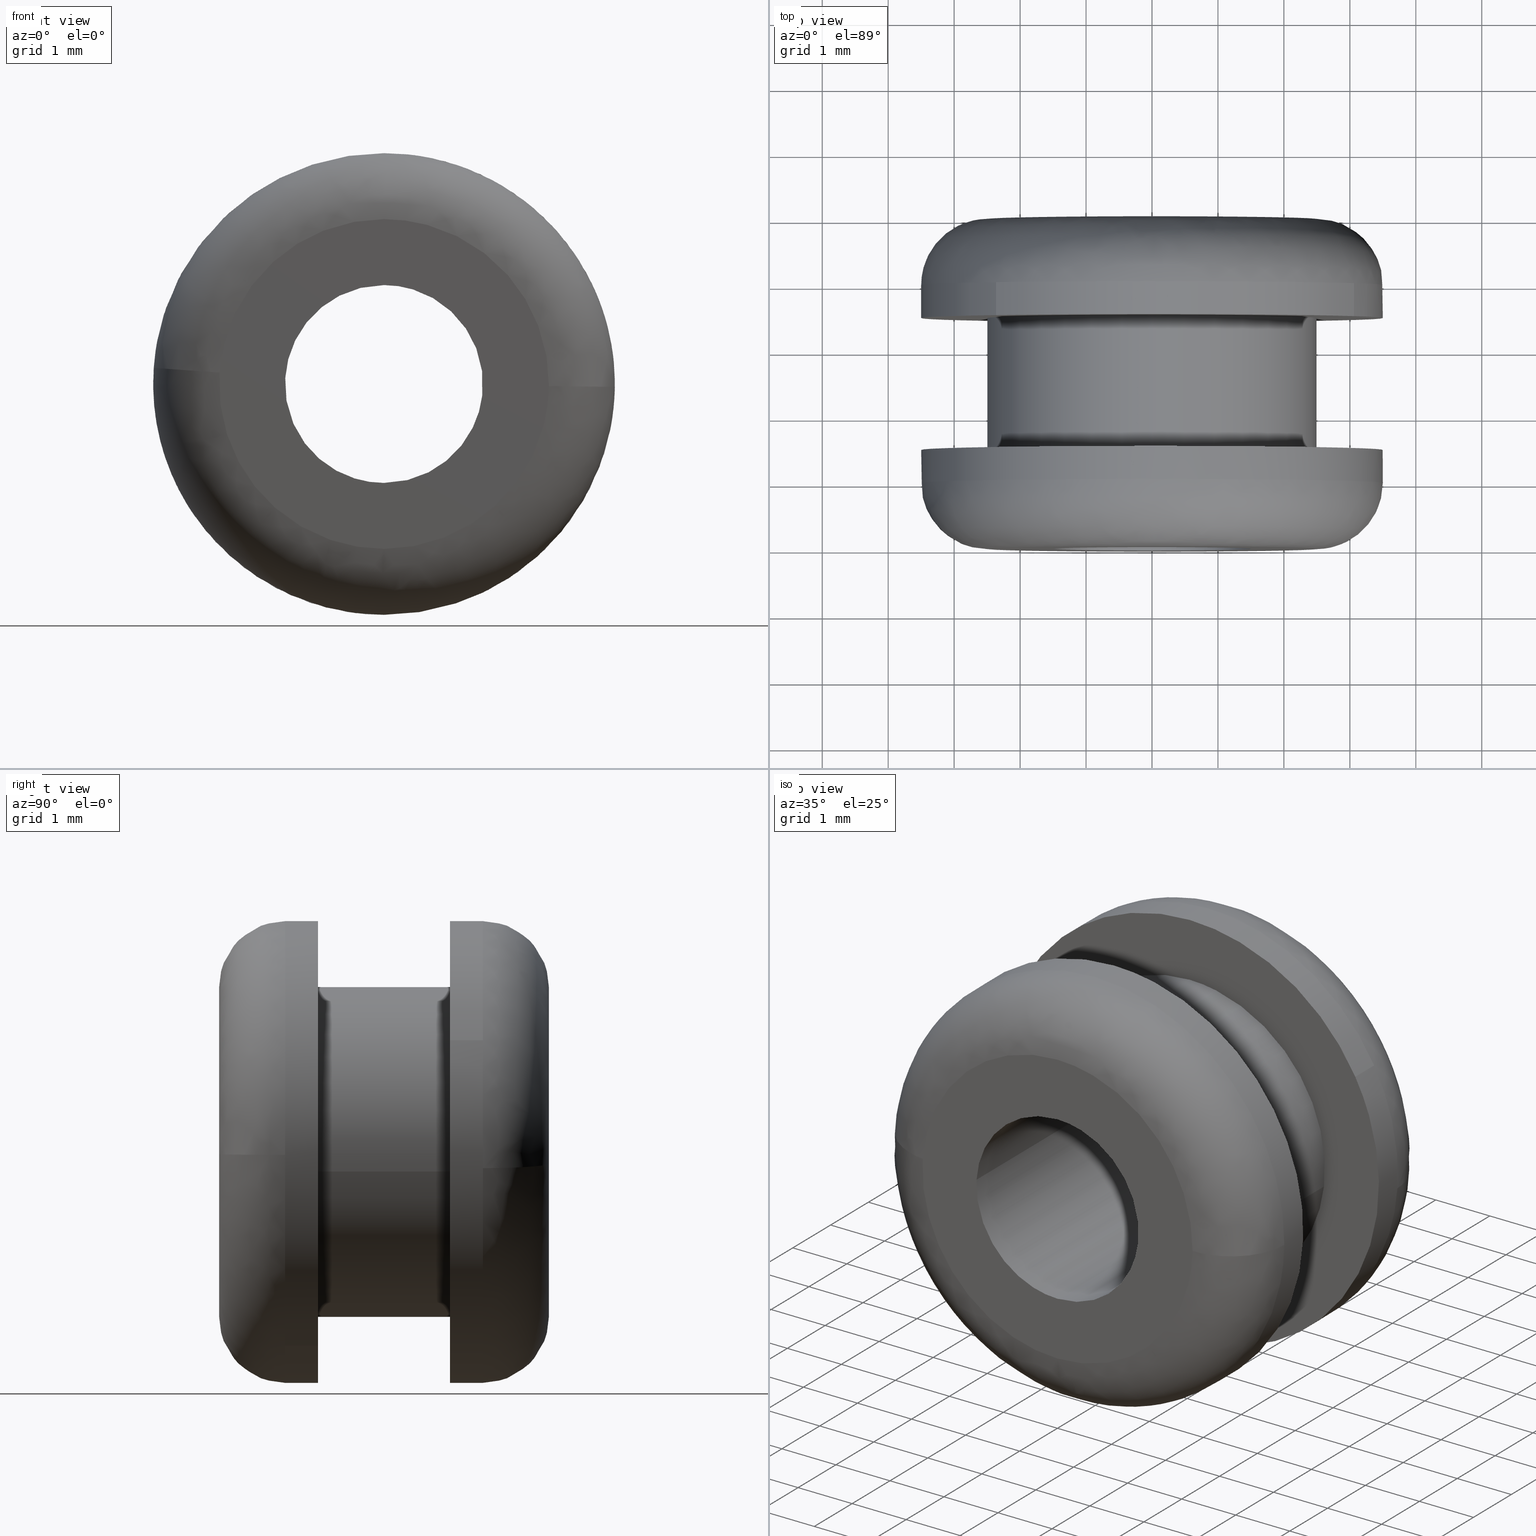
[diagram: canonical four-view strip — front | top / right | iso, engineering-drawing reading convention]
A machine part, canonical four-view strip (front | top / right | iso — engineering-drawing reading convention). The complete STEP part file that produces these views, byte-faithful:
ISO-10303-21;
HEADER;
/****************************************************************
 * Generated by software with PDE/Lib inside                    *
 * PDElib Version 4.4.1-0003, patched  Thursday August 19 11:58 *
 * International Technegroup Inc. (www.iti-oh.com)              *
 ****************************************************************/
FILE_DESCRIPTION((''),'2;1');
FILE_NAME('','2005-12-14T14:12:26',(''),(''),'','CADfix','');
FILE_SCHEMA(('AUTOMOTIVE_DESIGN'));
ENDSEC;
DATA;
#5=APPLICATION_CONTEXT('automotive design');
#6=APPLICATION_PROTOCOL_DEFINITION('Draft International Standard','automotive_design',1998,#5);
#7=PRODUCT_CONTEXT('None',#5,'mechanical');
#8=PRODUCT('grommet','','None',(#7));
#9=PRODUCT_RELATED_PRODUCT_CATEGORY('part','description',(#8));
#10=PRODUCT_DEFINITION_FORMATION('None','None',#8);
#11=PRODUCT_DEFINITION_CONTEXT('part definition',#5,'design');
#12=PRODUCT_DEFINITION('None','None',#10,#11);
#18=(NAMED_UNIT(*)PLANE_ANGLE_UNIT()SI_UNIT($,.RADIAN.));
#19=DIMENSIONAL_EXPONENTS(0.0,0.0,0.0,0.0,0.0,0.0,0.0);
#20=PLANE_ANGLE_MEASURE_WITH_UNIT(PLANE_ANGLE_MEASURE(0.017453292500000),#18);
#24=(CONVERSION_BASED_UNIT('DEGREE',#20)NAMED_UNIT(#19)PLANE_ANGLE_UNIT());
#28=(NAMED_UNIT(*)SI_UNIT($,.STERADIAN.)SOLID_ANGLE_UNIT());
#32=(LENGTH_UNIT()NAMED_UNIT(*)SI_UNIT(.MILLI.,.METRE.));
#34=UNCERTAINTY_MEASURE_WITH_UNIT(LENGTH_MEASURE(0.001000000000000),#32,'DISTANCE_ACCURACY_VALUE','');
#36=(GEOMETRIC_REPRESENTATION_CONTEXT(3)GLOBAL_UNCERTAINTY_ASSIGNED_CONTEXT((#34))GLOBAL_UNIT_ASSIGNED_CONTEXT((#24,#28,#32))REPRESENTATION_CONTEXT('None','None'));
#37=AXIS2_PLACEMENT_3D('',#38,#39,#40);
#38=CARTESIAN_POINT('',(0.0,0.0,0.0));
#39=DIRECTION('',(0.0,0.0,1.0));
#40=DIRECTION('',(1.0,0.0,0.0));
#41=ADVANCED_BREP_SHAPE_REPRESENTATION('',(#37,#1237),#36);
#42=PRODUCT_DEFINITION_SHAPE('','',#12);
#43=SHAPE_DEFINITION_REPRESENTATION(#42,#41);
#44=CARTESIAN_POINT('',(1.899551015351208,1.512500000000156,-2.939677863317372));
#45=CARTESIAN_POINT('',(2.069834292864542,1.512500000000156,-2.829644795839438));
#46=CARTESIAN_POINT('',(2.226273770972173,1.512500000000156,-2.700686041857019));
#47=CARTESIAN_POINT('',(4.926959812829193,1.512500000000157,-0.474412270884846));
#48=CARTESIAN_POINT('',(2.700686041857019,1.512500000000156,2.226273770972173));
#49=CARTESIAN_POINT('',(0.474412270884846,1.512500000000157,4.926959812829193));
#50=CARTESIAN_POINT('',(-2.226273770972173,1.512500000000156,2.700686041857018));
#51=CARTESIAN_POINT('',(-4.926959812829193,1.512500000000157,0.474412270884845));
#52=CARTESIAN_POINT('',(-2.700686041857019,1.512500000000156,-2.226273770972174));
#53=CARTESIAN_POINT('',(1.899551015351208,0.987187499993608,-2.939677863317372));
#54=CARTESIAN_POINT('',(2.069834292864542,0.987187499993608,-2.829644795839438));
#55=CARTESIAN_POINT('',(2.226273770972173,0.987187499993608,-2.700686041857019));
#56=CARTESIAN_POINT('',(4.926959812829193,0.987187499993608,-0.474412270884846));
#57=CARTESIAN_POINT('',(2.700686041857019,0.987187499993608,2.226273770972173));
#58=CARTESIAN_POINT('',(0.474412270884846,0.987187499993608,4.926959812829193));
#59=CARTESIAN_POINT('',(-2.226273770972173,0.987187499993608,2.700686041857018));
#60=CARTESIAN_POINT('',(-4.926959812829193,0.987187499993608,0.474412270884845));
#61=CARTESIAN_POINT('',(-2.700686041857019,0.987187499993608,-2.226273770972174));
#69=(BOUNDED_SURFACE()B_SPLINE_SURFACE(2,1,((#44,#53),(#45,#54),(#46,#55),(#47,#56),(#48,#57),(#49,#58),(#50,#59),(#51,#60),(#52,#61)),.UNSPECIFIED.,.F.,.F.,.U.)B_SPLINE_SURFACE_WITH_KNOTS((3,2,2,2,3),(2,2),(0.0,0.463919189857866,6.262909063081196,12.061898936304530,17.860888809527850),(0.0,1.0),.UNSPECIFIED.)GEOMETRIC_REPRESENTATION_ITEM()RATIONAL_B_SPLINE_SURFACE(((0.956886118190660,0.956886118190660),(0.976568542494924,0.976568542494924),(1.0,1.0),(0.707106781186548,0.707106781186548),(1.0,1.0),(0.707106781186548,0.707106781186548),(1.0,1.0),(0.707106781186548,0.707106781186548),(1.0,1.0)))REPRESENTATION_ITEM('')SURFACE());
#70=CARTESIAN_POINT('',(1.899550481738850,0.999999999998983,-2.939678208124894));
#71=VERTEX_POINT('',#70);
#72=CARTESIAN_POINT('',(3.499723654713332,0.999999999993827,-0.043981139593659));
#73=VERTEX_POINT('',#72);
#74=CARTESIAN_POINT('',(1.899550481738849,0.999999999998983,-2.939678208124894));
#75=CARTESIAN_POINT('',(3.476136023944697,0.999999999997179,-1.920926351079820));
#76=CARTESIAN_POINT('',(3.499723654713332,0.999999999993827,-0.043981139593659));
#84=(BOUNDED_CURVE()B_SPLINE_CURVE(2,(#74,#75,#76),.UNSPECIFIED.,.F.,.U.)B_SPLINE_CURVE_WITH_KNOTS((3,3),(0.092934687548090,0.247784295921535),.UNSPECIFIED.)CURVE()GEOMETRIC_REPRESENTATION_ITEM()RATIONAL_B_SPLINE_CURVE((0.863190132936236,0.816652436475568,0.994854295643567))REPRESENTATION_ITEM(''));
#85=EDGE_CURVE('',#71,#73,#84,.T.);
#86=ORIENTED_EDGE('',*,*,#85,.F.);
#87=CARTESIAN_POINT('',(1.899550485440329,1.500000000000000,-2.939678205733241));
#88=VERTEX_POINT('',#87);
#89=CARTESIAN_POINT('',(1.899550485440329,1.500000000000000,-2.939678205733241));
#90=CARTESIAN_POINT('',(1.899550481738850,0.999999999998983,-2.939678208124894));
#91=QUASI_UNIFORM_CURVE('',1,(#89,#90),.UNSPECIFIED.,.F.,.U.);
#92=EDGE_CURVE('',#88,#71,#91,.T.);
#93=ORIENTED_EDGE('',*,*,#92,.F.);
#94=CARTESIAN_POINT('',(0.0,1.500000000000000,3.500000000000000));
#95=VERTEX_POINT('',#94);
#96=CARTESIAN_POINT('',(1.899550485440329,1.500000000000000,-2.939678205733241));
#97=CARTESIAN_POINT('',(3.500000000000000,1.500000000000001,-1.905506014993988));
#98=CARTESIAN_POINT('',(3.500000000000000,1.500000000000000,-3.061516E-016));
#99=CARTESIAN_POINT('',(3.500000000000000,1.500000000000000,3.500000000000000));
#100=CARTESIAN_POINT('',(0.0,1.500000000000000,3.500000000000000));
#108=(BOUNDED_CURVE()B_SPLINE_CURVE(2,(#96,#97,#98,#99,#100),.UNSPECIFIED.,.F.,.U.)B_SPLINE_CURVE_WITH_KNOTS((3,2,3),(0.092934687932361,0.250000000000000,0.500000000000000),.UNSPECIFIED.)CURVE()GEOMETRIC_REPRESENTATION_ITEM()RATIONAL_B_SPLINE_CURVE((0.863190132705262,0.815986540738279,1.0,0.707106781186547,1.0))REPRESENTATION_ITEM(''));
#109=EDGE_CURVE('',#88,#95,#108,.T.);
#110=ORIENTED_EDGE('',*,*,#109,.T.);
#111=CARTESIAN_POINT('',(-2.700686313163404,1.500000000000000,-2.226273441851130));
#112=VERTEX_POINT('',#111);
#113=CARTESIAN_POINT('',(0.0,1.500000000000000,3.500000000000000));
#114=CARTESIAN_POINT('',(-3.500000000000000,1.500000000000000,3.500000000000000));
#115=CARTESIAN_POINT('',(-3.500000000000000,1.500000000000000,-3.061516E-016));
#116=CARTESIAN_POINT('',(-3.500000000000000,1.500000000000000,-1.256627921506466));
#117=CARTESIAN_POINT('',(-2.700686313163404,1.500000000000000,-2.226273441851130));
#125=(BOUNDED_CURVE()B_SPLINE_CURVE(2,(#113,#114,#115,#116,#117),.UNSPECIFIED.,.F.,.U.)B_SPLINE_CURVE_WITH_KNOTS((3,2,3),(0.500000000000000,0.750000000000000,0.860504588998465),.UNSPECIFIED.)CURVE()GEOMETRIC_REPRESENTATION_ITEM()RATIONAL_B_SPLINE_CURVE((1.0,0.707106781186547,1.0,0.870535820938328,0.855522729054526))REPRESENTATION_ITEM(''));
#126=EDGE_CURVE('',#95,#112,#125,.T.);
#127=ORIENTED_EDGE('',*,*,#126,.T.);
#128=CARTESIAN_POINT('',(-2.700686320416099,0.999999999999991,-2.226273433052903));
#129=VERTEX_POINT('',#128);
#130=CARTESIAN_POINT('',(-2.700686313163404,1.500000000000000,-2.226273441851130));
#131=CARTESIAN_POINT('',(-2.700686320416099,0.999999999999991,-2.226273433052903));
#132=QUASI_UNIFORM_CURVE('',1,(#130,#131),.UNSPECIFIED.,.F.,.U.);
#133=EDGE_CURVE('',#112,#129,#132,.T.);
#134=ORIENTED_EDGE('',*,*,#133,.T.);
#135=CARTESIAN_POINT('',(-3.491479858441498,0.999999999993767,0.244066380514253));
#136=VERTEX_POINT('',#135);
#137=CARTESIAN_POINT('',(-3.491479858441499,0.999999999993767,0.244066380514253));
#138=CARTESIAN_POINT('',(-3.500000000000000,1.0,0.122181905561697));
#139=CARTESIAN_POINT('',(-3.500000000000000,1.0,-3.061516E-016));
#140=CARTESIAN_POINT('',(-3.500000000000000,1.0,-1.256627908634423));
#141=CARTESIAN_POINT('',(-2.700686320416099,0.999999999999991,-2.226273433052903));
#149=(BOUNDED_CURVE()B_SPLINE_CURVE(2,(#137,#138,#139,#140,#141),.UNSPECIFIED.,.F.,.U.)B_SPLINE_CURVE_WITH_KNOTS((3,2,3),(0.737833686535114,0.750000000000000,0.860504588013076),.UNSPECIFIED.)CURVE()GEOMETRIC_REPRESENTATION_ITEM()RATIONAL_B_SPLINE_CURVE((0.972879876387024,0.985746277152705,1.0,0.870535822092783,0.855522729322275))REPRESENTATION_ITEM(''));
#150=EDGE_CURVE('',#136,#129,#149,.T.);
#151=ORIENTED_EDGE('',*,*,#150,.F.);
#152=CARTESIAN_POINT('',(0.0,1.0,3.500000000000000));
#153=VERTEX_POINT('',#152);
#154=CARTESIAN_POINT('',(0.0,1.0,3.500000000000000));
#155=CARTESIAN_POINT('',(-3.263878965432774,1.0,3.499999999999999));
#156=CARTESIAN_POINT('',(-3.491479858441499,0.999999999993767,0.244066380514253));
#164=(BOUNDED_CURVE()B_SPLINE_CURVE(2,(#154,#155,#156),.UNSPECIFIED.,.F.,.U.)B_SPLINE_CURVE_WITH_KNOTS((3,3),(0.500000000000000,0.737833686535114),.UNSPECIFIED.)CURVE()GEOMETRIC_REPRESENTATION_ITEM()RATIONAL_B_SPLINE_CURVE((1.0,0.721360504033843,0.972879876387023))REPRESENTATION_ITEM(''));
#165=EDGE_CURVE('',#153,#136,#164,.T.);
#166=ORIENTED_EDGE('',*,*,#165,.F.);
#167=CARTESIAN_POINT('',(3.499723654713332,0.999999999993827,-0.043981139593659));
#168=CARTESIAN_POINT('',(3.500000000000000,1.0,-0.021991437973539));
#169=CARTESIAN_POINT('',(3.500000000000000,1.0,-3.061516E-016));
#170=CARTESIAN_POINT('',(3.500000000000000,1.0,3.500000000000000));
#171=CARTESIAN_POINT('',(0.0,1.0,3.500000000000000));
#179=(BOUNDED_CURVE()B_SPLINE_CURVE(2,(#167,#168,#169,#170,#171),.UNSPECIFIED.,.F.,.U.)B_SPLINE_CURVE_WITH_KNOTS((3,2,3),(0.247784295921535,0.250000000000000,0.500000000000000),.UNSPECIFIED.)CURVE()GEOMETRIC_REPRESENTATION_ITEM()RATIONAL_B_SPLINE_CURVE((0.994854295643567,0.997404141202081,1.0,0.707106781186547,1.0))REPRESENTATION_ITEM(''));
#180=EDGE_CURVE('',#73,#153,#179,.T.);
#181=ORIENTED_EDGE('',*,*,#180,.F.);
#182=EDGE_LOOP('',(#86,#93,#110,#127,#134,#151,#166,#181));
#183=FACE_OUTER_BOUND('',#182,.T.);
#184=ADVANCED_FACE('',(#183),#69,.T.);
#185=CARTESIAN_POINT('',(-2.700686041857019,1.512500000000156,-2.226273770972174));
#186=CARTESIAN_POINT('',(-0.718207725037595,1.512500000000156,-4.631212277785017));
#187=CARTESIAN_POINT('',(1.899551015351208,1.512500000000156,-2.939677863317372));
#188=CARTESIAN_POINT('',(-2.700686041857019,0.987187499993608,-2.226273770972174));
#189=CARTESIAN_POINT('',(-0.718207725037595,0.987187499993608,-4.631212277785017));
#190=CARTESIAN_POINT('',(1.899551015351208,0.987187499993608,-2.939677863317372));
#198=(BOUNDED_SURFACE()B_SPLINE_SURFACE(2,1,((#185,#188),(#186,#189),(#187,#190)),.UNSPECIFIED.,.F.,.F.,.U.)B_SPLINE_SURFACE_WITH_KNOTS((3,3),(2,2),(0.0,5.329218847202446),(0.0,1.0),.UNSPECIFIED.)GEOMETRIC_REPRESENTATION_ITEM()RATIONAL_B_SPLINE_SURFACE(((1.0,1.0),(0.730538238691624,0.730538238691624),(0.956886118190660,0.956886118190660)))REPRESENTATION_ITEM('')SURFACE());
#199=CARTESIAN_POINT('',(0.0,1.0,-3.500000000000000));
#200=VERTEX_POINT('',#199);
#201=CARTESIAN_POINT('',(0.0,1.0,-3.500000000000000));
#202=CARTESIAN_POINT('',(1.032415634382080,1.0,-3.500000000000001));
#203=CARTESIAN_POINT('',(1.899550481738850,0.999999999998983,-2.939678208124894));
#211=(BOUNDED_CURVE()B_SPLINE_CURVE(2,(#201,#202,#203),.UNSPECIFIED.,.F.,.U.)B_SPLINE_CURVE_WITH_KNOTS((3,3),(0.0,0.092934687548090),.UNSPECIFIED.)CURVE()GEOMETRIC_REPRESENTATION_ITEM()RATIONAL_B_SPLINE_CURVE((1.0,0.891120240898470,0.863190132936235))REPRESENTATION_ITEM(''));
#212=EDGE_CURVE('',#200,#71,#211,.T.);
#213=ORIENTED_EDGE('',*,*,#212,.F.);
#214=CARTESIAN_POINT('',(-2.700686320416099,0.999999999999991,-2.226273433052902));
#215=CARTESIAN_POINT('',(-1.650707701043124,1.0,-3.500000000000001));
#216=CARTESIAN_POINT('',(0.0,1.0,-3.500000000000000));
#224=(BOUNDED_CURVE()B_SPLINE_CURVE(2,(#214,#215,#216),.UNSPECIFIED.,.F.,.U.)B_SPLINE_CURVE_WITH_KNOTS((3,3),(0.860504588013076,1.0),.UNSPECIFIED.)CURVE()GEOMETRIC_REPRESENTATION_ITEM()RATIONAL_B_SPLINE_CURVE((0.855522729322274,0.836570959093765,1.0))REPRESENTATION_ITEM(''));
#225=EDGE_CURVE('',#129,#200,#224,.T.);
#226=ORIENTED_EDGE('',*,*,#225,.F.);
#227=ORIENTED_EDGE('',*,*,#133,.F.);
#228=CARTESIAN_POINT('',(0.0,1.500000000000000,-3.500000000000000));
#229=VERTEX_POINT('',#228);
#230=CARTESIAN_POINT('',(-2.700686313163404,1.500000000000000,-2.226273441851130));
#231=CARTESIAN_POINT('',(-1.650707687104655,1.500000000000000,-3.500000000000000));
#232=CARTESIAN_POINT('',(0.0,1.500000000000000,-3.500000000000000));
#240=(BOUNDED_CURVE()B_SPLINE_CURVE(2,(#230,#231,#232),.UNSPECIFIED.,.F.,.U.)B_SPLINE_CURVE_WITH_KNOTS((3,3),(0.860504588998465,1.0),.UNSPECIFIED.)CURVE()GEOMETRIC_REPRESENTATION_ITEM()RATIONAL_B_SPLINE_CURVE((0.855522729054526,0.836570960248220,1.0))REPRESENTATION_ITEM(''));
#241=EDGE_CURVE('',#112,#229,#240,.T.);
#242=ORIENTED_EDGE('',*,*,#241,.T.);
#243=CARTESIAN_POINT('',(0.0,1.500000000000000,-3.500000000000000));
#244=CARTESIAN_POINT('',(1.032415639172544,1.500000000000000,-3.500000000000001));
#245=CARTESIAN_POINT('',(1.899550485440329,1.500000000000000,-2.939678205733241));
#253=(BOUNDED_CURVE()B_SPLINE_CURVE(2,(#243,#244,#245),.UNSPECIFIED.,.F.,.U.)B_SPLINE_CURVE_WITH_KNOTS((3,3),(0.0,0.092934687932361),.UNSPECIFIED.)CURVE()GEOMETRIC_REPRESENTATION_ITEM()RATIONAL_B_SPLINE_CURVE((1.0,0.891120240448269,0.863190132705262))REPRESENTATION_ITEM(''));
#254=EDGE_CURVE('',#229,#88,#253,.T.);
#255=ORIENTED_EDGE('',*,*,#254,.T.);
#256=ORIENTED_EDGE('',*,*,#92,.T.);
#257=EDGE_LOOP('',(#213,#226,#227,#242,#255,#256));
#258=FACE_OUTER_BOUND('',#257,.T.);
#259=ADVANCED_FACE('',(#258),#198,.T.);
#260=CARTESIAN_POINT('',(2.482523815909166,3.550000000000001,-0.295085586641897));
#261=CARTESIAN_POINT('',(2.490969038621514,3.550000000000001,-0.224036821594944));
#262=CARTESIAN_POINT('',(2.495336996054667,3.550000000000001,-0.152621348837143));
#263=CARTESIAN_POINT('',(2.647958344891809,3.550000000000002,2.342715647217524));
#264=CARTESIAN_POINT('',(0.152621348837143,3.550000000000001,2.495336996054666));
#265=CARTESIAN_POINT('',(-2.342715647217524,3.550000000000002,2.647958344891809));
#266=CARTESIAN_POINT('',(-2.495336996054667,3.550000000000001,0.152621348837142));
#267=CARTESIAN_POINT('',(2.482523815909166,1.448750000000000,-0.295085586641897));
#268=CARTESIAN_POINT('',(2.490969038621514,1.448750000000000,-0.224036821594944));
#269=CARTESIAN_POINT('',(2.495336996054667,1.448750000000000,-0.152621348837143));
#270=CARTESIAN_POINT('',(2.647958344891809,1.448750000000000,2.342715647217524));
#271=CARTESIAN_POINT('',(0.152621348837143,1.448750000000000,2.495336996054666));
#272=CARTESIAN_POINT('',(-2.342715647217524,1.448750000000000,2.647958344891809));
#273=CARTESIAN_POINT('',(-2.495336996054667,1.448750000000000,0.152621348837142));
#281=(BOUNDED_SURFACE()B_SPLINE_SURFACE(2,1,((#260,#267),(#261,#268),(#262,#269),(#263,#270),(#264,#271),(#265,#272),(#266,#273)),.UNSPECIFIED.,.F.,.F.,.U.)B_SPLINE_SURFACE_WITH_KNOTS((3,2,2,3),(2,2),(0.0,0.165685424949238,4.307821048680188,8.449956672411137),(0.0,2.101250000000001),.UNSPECIFIED.)GEOMETRIC_REPRESENTATION_ITEM()RATIONAL_B_SPLINE_SURFACE(((0.977505800795127,0.977505800795127),(0.988284271247462,0.988284271247462),(1.0,1.0),(0.707106781186548,0.707106781186548),(1.0,1.0),(0.707106781186548,0.707106781186548),(1.0,1.0)))REPRESENTATION_ITEM('')SURFACE());
#282=CARTESIAN_POINT('',(2.482524095308369,1.499999999999989,-0.295083236066980));
#283=VERTEX_POINT('',#282);
#284=CARTESIAN_POINT('',(0.0,1.500000000000000,2.500000000000000));
#285=VERTEX_POINT('',#284);
#286=CARTESIAN_POINT('',(2.482524095308369,1.499999999999988,-0.295083236066980));
#287=CARTESIAN_POINT('',(2.500000000000000,1.500000000000000,-0.148059111417495));
#288=CARTESIAN_POINT('',(2.500000000000000,1.500000000000000,-3.061516E-016));
#289=CARTESIAN_POINT('',(2.500000000000000,1.500000000000000,2.500000000000000));
#290=CARTESIAN_POINT('',(0.0,1.500000000000000,2.500000000000000));
#298=(BOUNDED_CURVE()B_SPLINE_CURVE(2,(#286,#287,#288,#289,#290),.UNSPECIFIED.,.F.,.U.)B_SPLINE_CURVE_WITH_KNOTS((3,2,3),(0.229562633536192,0.250000000000000,0.500000000000000),.UNSPECIFIED.)CURVE()GEOMETRIC_REPRESENTATION_ITEM()RATIONAL_B_SPLINE_CURVE((0.956027067834948,0.976056135809381,1.0,0.707106781186548,1.0))REPRESENTATION_ITEM(''));
#299=EDGE_CURVE('',#283,#285,#298,.T.);
#300=ORIENTED_EDGE('',*,*,#299,.F.);
#301=CARTESIAN_POINT('',(2.482524091859304,3.500000000000000,-0.295083265084057));
#302=VERTEX_POINT('',#301);
#303=CARTESIAN_POINT('',(2.482524091859304,3.500000000000000,-0.295083265084057));
#304=CARTESIAN_POINT('',(2.482524095308369,1.499999999999989,-0.295083236066980));
#305=QUASI_UNIFORM_CURVE('',1,(#303,#304),.UNSPECIFIED.,.F.,.U.);
#306=EDGE_CURVE('',#302,#283,#305,.T.);
#307=ORIENTED_EDGE('',*,*,#306,.F.);
#308=CARTESIAN_POINT('',(0.0,3.500000000000000,2.500000000000000));
#309=VERTEX_POINT('',#308);
#310=CARTESIAN_POINT('',(2.482524091859305,3.500000000000000,-0.295083265084057));
#311=CARTESIAN_POINT('',(2.500000000000000,3.500000000000000,-0.148059126079412));
#312=CARTESIAN_POINT('',(2.500000000000000,3.500000000000000,-3.061516E-016));
#313=CARTESIAN_POINT('',(2.500000000000000,3.499999999999999,2.500000000000000));
#314=CARTESIAN_POINT('',(0.0,3.500000000000000,2.500000000000000));
#322=(BOUNDED_CURVE()B_SPLINE_CURVE(2,(#310,#311,#312,#313,#314),.UNSPECIFIED.,.F.,.U.)B_SPLINE_CURVE_WITH_KNOTS((3,2,3),(0.229562631560791,0.250000000000000,0.500000000000000),.UNSPECIFIED.)CURVE()GEOMETRIC_REPRESENTATION_ITEM()RATIONAL_B_SPLINE_CURVE((0.956027063963075,0.976056133495054,1.0,0.707106781186548,1.0))REPRESENTATION_ITEM(''));
#323=EDGE_CURVE('',#302,#309,#322,.T.);
#324=ORIENTED_EDGE('',*,*,#323,.T.);
#325=CARTESIAN_POINT('',(-2.495337142089722,3.500000000000000,0.152618961147619));
#326=VERTEX_POINT('',#325);
#327=CARTESIAN_POINT('',(0.0,3.500000000000000,2.500000000000000));
#328=CARTESIAN_POINT('',(-2.351767421781551,3.500000000000000,2.500000000000000));
#329=CARTESIAN_POINT('',(-2.495337142089722,3.500000000000000,0.152618961147619));
#337=(BOUNDED_CURVE()B_SPLINE_CURVE(2,(#327,#328,#329),.UNSPECIFIED.,.F.,.U.)B_SPLINE_CURVE_WITH_KNOTS((3,3),(0.500000000000000,0.739333127345204),.UNSPECIFIED.)CURVE()GEOMETRIC_REPRESENTATION_ITEM()RATIONAL_B_SPLINE_CURVE((1.0,0.719603799852693,0.976072395521120))REPRESENTATION_ITEM(''));
#338=EDGE_CURVE('',#309,#326,#337,.T.);
#339=ORIENTED_EDGE('',*,*,#338,.T.);
#340=CARTESIAN_POINT('',(-2.495337143915105,1.499999999999989,0.152618931301920));
#341=VERTEX_POINT('',#340);
#342=CARTESIAN_POINT('',(-2.495337142089722,3.500000000000000,0.152618961147619));
#343=CARTESIAN_POINT('',(-2.495337143915105,1.499999999999989,0.152618931301920));
#344=QUASI_UNIFORM_CURVE('',1,(#342,#343),.UNSPECIFIED.,.F.,.U.);
#345=EDGE_CURVE('',#326,#341,#344,.T.);
#346=ORIENTED_EDGE('',*,*,#345,.T.);
#347=CARTESIAN_POINT('',(0.0,1.500000000000000,2.500000000000000));
#348=CARTESIAN_POINT('',(-2.351767449962633,1.500000000000000,2.500000000000000));
#349=CARTESIAN_POINT('',(-2.495337143915105,1.499999999999989,0.152618931301920));
#357=(BOUNDED_CURVE()B_SPLINE_CURVE(2,(#347,#348,#349),.UNSPECIFIED.,.F.,.U.)B_SPLINE_CURVE_WITH_KNOTS((3,3),(0.500000000000000,0.739333129408966),.UNSPECIFIED.)CURVE()GEOMETRIC_REPRESENTATION_ITEM()RATIONAL_B_SPLINE_CURVE((1.0,0.719603797434846,0.976072399944161))REPRESENTATION_ITEM(''));
#358=EDGE_CURVE('',#285,#341,#357,.T.);
#359=ORIENTED_EDGE('',*,*,#358,.F.);
#360=EDGE_LOOP('',(#300,#307,#324,#339,#346,#359));
#361=FACE_OUTER_BOUND('',#360,.T.);
#362=ADVANCED_FACE('',(#361),#281,.T.);
#363=CARTESIAN_POINT('',(-2.495336996054667,3.550000000000001,0.152621348837142));
#364=CARTESIAN_POINT('',(-2.647958344891809,3.550000000000002,-2.342715647217524));
#365=CARTESIAN_POINT('',(-0.152621348837143,3.550000000000001,-2.495336996054667));
#366=CARTESIAN_POINT('',(2.203858727098751,3.550000000000001,-2.639465491831319));
#367=CARTESIAN_POINT('',(2.482523815909166,3.550000000000001,-0.295085586641897));
#368=CARTESIAN_POINT('',(-2.495336996054667,1.448750000000000,0.152621348837142));
#369=CARTESIAN_POINT('',(-2.647958344891809,1.448750000000000,-2.342715647217524));
#370=CARTESIAN_POINT('',(-0.152621348837143,1.448750000000000,-2.495336996054667));
#371=CARTESIAN_POINT('',(2.203858727098751,1.448749999999999,-2.639465491831319));
#372=CARTESIAN_POINT('',(2.482523815909166,1.448750000000000,-0.295085586641897));
#380=(BOUNDED_SURFACE()B_SPLINE_SURFACE(2,1,((#363,#368),(#364,#369),(#365,#370),(#366,#371),(#367,#372)),.UNSPECIFIED.,.F.,.F.,.U.)B_SPLINE_SURFACE_WITH_KNOTS((3,2,3),(2,2),(0.0,4.142135623730949,8.118585822512660),(0.0,2.101250000000001),.UNSPECIFIED.)GEOMETRIC_REPRESENTATION_ITEM()RATIONAL_B_SPLINE_SURFACE(((1.0,1.0),(0.707106781186548,0.707106781186548),(1.0,1.0),(0.718822509939086,0.718822509939086),(0.977505800795127,0.977505800795127)))REPRESENTATION_ITEM('')SURFACE());
#381=CARTESIAN_POINT('',(0.0,1.500000000000000,-2.500000000000000));
#382=VERTEX_POINT('',#381);
#383=CARTESIAN_POINT('',(0.0,1.500000000000000,-2.500000000000000));
#384=CARTESIAN_POINT('',(2.220438432097085,1.500000000000000,-2.500000000000000));
#385=CARTESIAN_POINT('',(2.482524095308369,1.499999999999988,-0.295083236066980));
#393=(BOUNDED_CURVE()B_SPLINE_CURVE(2,(#383,#384,#385),.UNSPECIFIED.,.F.,.U.)B_SPLINE_CURVE_WITH_KNOTS((3,3),(0.0,0.229562633536192),.UNSPECIFIED.)CURVE()GEOMETRIC_REPRESENTATION_ITEM()RATIONAL_B_SPLINE_CURVE((1.0,0.731050645377167,0.956027067834948))REPRESENTATION_ITEM(''));
#394=EDGE_CURVE('',#382,#283,#393,.T.);
#395=ORIENTED_EDGE('',*,*,#394,.F.);
#396=CARTESIAN_POINT('',(-2.495337143915105,1.499999999999989,0.152618931301920));
#397=CARTESIAN_POINT('',(-2.500000000000000,1.500000000000000,0.076380696089684));
#398=CARTESIAN_POINT('',(-2.500000000000000,1.500000000000000,-3.061516E-016));
#399=CARTESIAN_POINT('',(-2.500000000000000,1.500000000000000,-2.500000000000000));
#400=CARTESIAN_POINT('',(0.0,1.500000000000000,-2.500000000000000));
#408=(BOUNDED_CURVE()B_SPLINE_CURVE(2,(#396,#397,#398,#399,#400),.UNSPECIFIED.,.F.,.U.)B_SPLINE_CURVE_WITH_KNOTS((3,2,3),(0.739333129408966,0.750000000000000,1.0),.UNSPECIFIED.)CURVE()GEOMETRIC_REPRESENTATION_ITEM()RATIONAL_B_SPLINE_CURVE((0.976072399944161,0.987502983751702,1.0,0.707106781186548,1.0))REPRESENTATION_ITEM(''));
#409=EDGE_CURVE('',#341,#382,#408,.T.);
#410=ORIENTED_EDGE('',*,*,#409,.F.);
#411=ORIENTED_EDGE('',*,*,#345,.F.);
#412=CARTESIAN_POINT('',(0.0,3.500000000000000,-2.500000000000000));
#413=VERTEX_POINT('',#412);
#414=CARTESIAN_POINT('',(-2.495337142089722,3.500000000000000,0.152618961147619));
#415=CARTESIAN_POINT('',(-2.500000000000000,3.499999999999999,0.076380711054374));
#416=CARTESIAN_POINT('',(-2.500000000000000,3.500000000000000,-3.061516E-016));
#417=CARTESIAN_POINT('',(-2.500000000000000,3.499999999999999,-2.500000000000000));
#418=CARTESIAN_POINT('',(0.0,3.500000000000000,-2.500000000000000));
#426=(BOUNDED_CURVE()B_SPLINE_CURVE(2,(#414,#415,#416,#417,#418),.UNSPECIFIED.,.F.,.U.)B_SPLINE_CURVE_WITH_KNOTS((3,2,3),(0.739333127345204,0.750000000000000,1.0),.UNSPECIFIED.)CURVE()GEOMETRIC_REPRESENTATION_ITEM()RATIONAL_B_SPLINE_CURVE((0.976072395521120,0.987502981333855,1.0,0.707106781186548,1.0))REPRESENTATION_ITEM(''));
#427=EDGE_CURVE('',#326,#413,#426,.T.);
#428=ORIENTED_EDGE('',*,*,#427,.T.);
#429=CARTESIAN_POINT('',(0.0,3.500000000000000,-2.500000000000000));
#430=CARTESIAN_POINT('',(2.220438405960706,3.500000000000000,-2.500000000000001));
#431=CARTESIAN_POINT('',(2.482524091859305,3.500000000000000,-0.295083265084057));
#439=(BOUNDED_CURVE()B_SPLINE_CURVE(2,(#429,#430,#431),.UNSPECIFIED.,.F.,.U.)B_SPLINE_CURVE_WITH_KNOTS((3,3),(0.0,0.229562631560791),.UNSPECIFIED.)CURVE()GEOMETRIC_REPRESENTATION_ITEM()RATIONAL_B_SPLINE_CURVE((1.0,0.731050647691493,0.956027063963075))REPRESENTATION_ITEM(''));
#440=EDGE_CURVE('',#413,#302,#439,.T.);
#441=ORIENTED_EDGE('',*,*,#440,.T.);
#442=ORIENTED_EDGE('',*,*,#306,.T.);
#443=EDGE_LOOP('',(#395,#410,#411,#428,#441,#442));
#444=FACE_OUTER_BOUND('',#443,.T.);
#445=ADVANCED_FACE('',(#444),#380,.T.);
#446=CARTESIAN_POINT('',(3.062312496050955,4.012499999999999,1.694769062890327));
#447=CARTESIAN_POINT('',(2.861143918596612,4.012500000000000,2.058264634080782));
#448=CARTESIAN_POINT('',(2.580470678835433,4.012500000000000,2.364565726654810));
#449=CARTESIAN_POINT('',(0.215904952180622,4.012500000000000,4.945036405490243));
#450=CARTESIAN_POINT('',(-2.364565726654810,4.012500000000000,2.580470678835432));
#451=CARTESIAN_POINT('',(3.062312496050955,3.487187500000000,1.694769062890327));
#452=CARTESIAN_POINT('',(2.861143918596612,3.487187500000000,2.058264634080782));
#453=CARTESIAN_POINT('',(2.580470678835433,3.487187500000000,2.364565726654810));
#454=CARTESIAN_POINT('',(0.215904952180622,3.487187500000001,4.945036405490243));
#455=CARTESIAN_POINT('',(-2.364565726654810,3.487187500000000,2.580470678835432));
#463=(BOUNDED_SURFACE()B_SPLINE_SURFACE(2,1,((#446,#451),(#447,#452),(#448,#453),(#449,#454),(#450,#455)),.UNSPECIFIED.,.F.,.F.,.U.)B_SPLINE_SURFACE_WITH_KNOTS((3,2,3),(2,2),(0.0,0.927838379715734,6.726828252939063),(0.0,1.0),.UNSPECIFIED.)GEOMETRIC_REPRESENTATION_ITEM()RATIONAL_B_SPLINE_SURFACE(((0.921270302782944,0.921270302782944),(0.953137084989848,0.953137084989848),(1.0,1.0),(0.707106781186548,0.707106781186548),(1.0,1.0)))REPRESENTATION_ITEM('')SURFACE());
#464=CARTESIAN_POINT('',(3.062312809461116,3.999999043841613,1.694768496581680));
#465=VERTEX_POINT('',#464);
#466=CARTESIAN_POINT('',(0.0,4.0,3.500000000000000));
#467=VERTEX_POINT('',#466);
#468=CARTESIAN_POINT('',(3.062312809461116,3.999999043841613,1.694768496581680));
#469=CARTESIAN_POINT('',(2.063248267086356,3.999999605294685,3.500000000000041));
#470=CARTESIAN_POINT('',(0.0,4.0,3.500000000000000));
#478=(BOUNDED_CURVE()B_SPLINE_CURVE(2,(#468,#469,#470),.UNSPECIFIED.,.F.,.U.)B_SPLINE_CURVE_WITH_KNOTS((3,3),(0.332484232055863,0.500000000000000),.UNSPECIFIED.)CURVE()GEOMETRIC_REPRESENTATION_ITEM()RATIONAL_B_SPLINE_CURVE((0.870495182812020,0.803743070099337,1.0))REPRESENTATION_ITEM(''));
#479=EDGE_CURVE('',#465,#467,#478,.T.);
#480=ORIENTED_EDGE('',*,*,#479,.T.);
#481=CARTESIAN_POINT('',(-2.364565584249820,3.999999325511647,2.580470809324931));
#482=VERTEX_POINT('',#481);
#483=CARTESIAN_POINT('',(0.0,4.0,3.500000000000000));
#484=CARTESIAN_POINT('',(-1.361075339126738,3.999999719481177,3.499999999999992));
#485=CARTESIAN_POINT('',(-2.364565584249820,3.999999325511646,2.580470809324931));
#493=(BOUNDED_CURVE()B_SPLINE_CURVE(2,(#483,#484,#485),.UNSPECIFIED.,.F.,.U.)B_SPLINE_CURVE_WITH_KNOTS((3,3),(0.500000000000000,0.618415192422474),.UNSPECIFIED.)CURVE()GEOMETRIC_REPRESENTATION_ITEM()RATIONAL_B_SPLINE_CURVE((1.0,0.861267972539869,0.853959782894549))REPRESENTATION_ITEM(''));
#494=EDGE_CURVE('',#467,#482,#493,.T.);
#495=ORIENTED_EDGE('',*,*,#494,.T.);
#496=CARTESIAN_POINT('',(-2.364565588025771,3.500000000000000,2.580470805865530));
#497=VERTEX_POINT('',#496);
#498=CARTESIAN_POINT('',(-2.364565584249820,3.999999325511647,2.580470809324931));
#499=CARTESIAN_POINT('',(-2.364565588025771,3.500000000000000,2.580470805865530));
#500=QUASI_UNIFORM_CURVE('',1,(#498,#499),.UNSPECIFIED.,.F.,.U.);
#501=EDGE_CURVE('',#482,#497,#500,.T.);
#502=ORIENTED_EDGE('',*,*,#501,.T.);
#503=CARTESIAN_POINT('',(0.0,3.500000000000000,3.500000000000000));
#504=VERTEX_POINT('',#503);
#505=CARTESIAN_POINT('',(0.0,3.500000000000000,3.500000000000000));
#506=CARTESIAN_POINT('',(-1.361075345022230,3.500000000000000,3.500000000000000));
#507=CARTESIAN_POINT('',(-2.364565588025771,3.500000000000000,2.580470805865530));
#515=(BOUNDED_CURVE()B_SPLINE_CURVE(2,(#505,#506,#507),.UNSPECIFIED.,.F.,.U.)B_SPLINE_CURVE_WITH_KNOTS((3,3),(0.500000000000000,0.618415192864190),.UNSPECIFIED.)CURVE()GEOMETRIC_REPRESENTATION_ITEM()RATIONAL_B_SPLINE_CURVE((1.0,0.861267972022367,0.853959782840026))REPRESENTATION_ITEM(''));
#516=EDGE_CURVE('',#504,#497,#515,.T.);
#517=ORIENTED_EDGE('',*,*,#516,.F.);
#518=CARTESIAN_POINT('',(3.062312784765610,3.500000000000000,1.694768541205769));
#519=VERTEX_POINT('',#518);
#520=CARTESIAN_POINT('',(3.062312784765611,3.500000000000000,1.694768541205769));
#521=CARTESIAN_POINT('',(2.063248198361086,3.500000000000000,3.500000000000000));
#522=CARTESIAN_POINT('',(0.0,3.500000000000000,3.500000000000000));
#530=(BOUNDED_CURVE()B_SPLINE_CURVE(2,(#520,#521,#522),.UNSPECIFIED.,.F.,.U.)B_SPLINE_CURVE_WITH_KNOTS((3,3),(0.332484236540648,0.500000000000000),.UNSPECIFIED.)CURVE()GEOMETRIC_REPRESENTATION_ITEM()RATIONAL_B_SPLINE_CURVE((0.870495179237803,0.803743075353590,1.0))REPRESENTATION_ITEM(''));
#531=EDGE_CURVE('',#519,#504,#530,.T.);
#532=ORIENTED_EDGE('',*,*,#531,.F.);
#533=CARTESIAN_POINT('',(3.062312809461116,3.999999043841613,1.694768496581680));
#534=CARTESIAN_POINT('',(3.062312784765610,3.500000000000000,1.694768541205769));
#535=QUASI_UNIFORM_CURVE('',1,(#533,#534),.UNSPECIFIED.,.F.,.U.);
#536=EDGE_CURVE('',#465,#519,#535,.T.);
#537=ORIENTED_EDGE('',*,*,#536,.F.);
#538=EDGE_LOOP('',(#480,#495,#502,#517,#532,#537));
#539=FACE_OUTER_BOUND('',#538,.T.);
#540=ADVANCED_FACE('',(#539),#463,.T.);
#541=CARTESIAN_POINT('',(-2.364565726654810,4.012500000000000,2.580470678835432));
#542=CARTESIAN_POINT('',(-4.945036405490243,4.012500000000000,0.215904952180622));
#543=CARTESIAN_POINT('',(-2.580470678835433,4.012500000000000,-2.364565726654811));
#544=CARTESIAN_POINT('',(-0.215904952180622,4.012500000000000,-4.945036405490244));
#545=CARTESIAN_POINT('',(2.364565726654810,4.012500000000000,-2.580470678835433));
#546=CARTESIAN_POINT('',(4.397434412072781,4.012500000000000,-0.717689729703126));
#547=CARTESIAN_POINT('',(3.062312496050955,4.012499999999999,1.694769062890327));
#548=CARTESIAN_POINT('',(-2.364565726654810,3.487187500000000,2.580470678835432));
#549=CARTESIAN_POINT('',(-4.945036405490243,3.487187500000001,0.215904952180622));
#550=CARTESIAN_POINT('',(-2.580470678835433,3.487187500000000,-2.364565726654811));
#551=CARTESIAN_POINT('',(-0.215904952180622,3.487187500000001,-4.945036405490244));
#552=CARTESIAN_POINT('',(2.364565726654810,3.487187500000000,-2.580470678835433));
#553=CARTESIAN_POINT('',(4.397434412072781,3.487187500000000,-0.717689729703126));
#554=CARTESIAN_POINT('',(3.062312496050955,3.487187500000000,1.694769062890327));
#562=(BOUNDED_SURFACE()B_SPLINE_SURFACE(2,1,((#541,#548),(#542,#549),(#543,#550),(#544,#551),(#545,#552),(#546,#553),(#547,#554)),.UNSPECIFIED.,.F.,.F.,.U.)B_SPLINE_SURFACE_WITH_KNOTS((3,2,2,3),(2,2),(0.0,5.798989873223329,11.597979746446660,16.469131239954251),(0.0,1.0),.UNSPECIFIED.)GEOMETRIC_REPRESENTATION_ITEM()RATIONAL_B_SPLINE_SURFACE(((1.0,1.0),(0.707106781186548,0.707106781186548),(1.0,1.0),(0.707106781186548,0.707106781186548),(1.0,1.0),(0.753969696196700,0.753969696196700),(0.921270302782944,0.921270302782944)))REPRESENTATION_ITEM('')SURFACE());
#563=CARTESIAN_POINT('',(3.491479914727528,3.999998564003359,-0.244065575284920));
#564=VERTEX_POINT('',#563);
#565=CARTESIAN_POINT('',(3.491479914727529,3.999998564003359,-0.244065575284920));
#566=CARTESIAN_POINT('',(3.499999999997884,3.999998587377032,-0.122181501472530));
#567=CARTESIAN_POINT('',(3.499999999997921,3.999998612441635,1.450815E-013));
#568=CARTESIAN_POINT('',(3.499999999998199,3.999998797870233,0.903901969456682));
#569=CARTESIAN_POINT('',(3.062312809461116,3.999999043841613,1.694768496581679));
#577=(BOUNDED_CURVE()B_SPLINE_CURVE(2,(#565,#566,#567,#568,#569),.UNSPECIFIED.,.F.,.U.)B_SPLINE_CURVE_WITH_KNOTS((3,2,3),(0.237833726198915,0.250000000000000,0.332484232055863),.UNSPECIFIED.)CURVE()GEOMETRIC_REPRESENTATION_ITEM()RATIONAL_B_SPLINE_CURVE((0.972879960279395,0.985746323621737,1.0,0.903363711087211,0.870495182812020))REPRESENTATION_ITEM(''));
#578=EDGE_CURVE('',#564,#465,#577,.T.);
#579=ORIENTED_EDGE('',*,*,#578,.T.);
#580=ORIENTED_EDGE('',*,*,#536,.T.);
#581=CARTESIAN_POINT('',(0.0,3.500000000000000,-3.500000000000000));
#582=VERTEX_POINT('',#581);
#583=CARTESIAN_POINT('',(0.0,3.500000000000000,-3.500000000000000));
#584=CARTESIAN_POINT('',(3.500000000000000,3.500000000000000,-3.500000000000001));
#585=CARTESIAN_POINT('',(3.500000000000000,3.500000000000000,-3.061516E-016));
#586=CARTESIAN_POINT('',(3.500000000000001,3.500000000000001,0.903902023860378));
#587=CARTESIAN_POINT('',(3.062312784765611,3.500000000000000,1.694768541205769));
#595=(BOUNDED_CURVE()B_SPLINE_CURVE(2,(#583,#584,#585,#586,#587),.UNSPECIFIED.,.F.,.U.)B_SPLINE_CURVE_WITH_KNOTS((3,2,3),(0.0,0.250000000000000,0.332484236540648),.UNSPECIFIED.)CURVE()GEOMETRIC_REPRESENTATION_ITEM()RATIONAL_B_SPLINE_CURVE((1.0,0.707106781186547,1.0,0.903363705832958,0.870495179237803))REPRESENTATION_ITEM(''));
#596=EDGE_CURVE('',#582,#519,#595,.T.);
#597=ORIENTED_EDGE('',*,*,#596,.F.);
#598=CARTESIAN_POINT('',(-2.364565588025771,3.500000000000000,2.580470805865530));
#599=CARTESIAN_POINT('',(-3.500000000000000,3.500000000000000,1.540037082553790));
#600=CARTESIAN_POINT('',(-3.500000000000000,3.500000000000000,-3.061516E-016));
#601=CARTESIAN_POINT('',(-3.500000000000000,3.500000000000000,-3.500000000000001));
#602=CARTESIAN_POINT('',(0.0,3.500000000000000,-3.500000000000000));
#610=(BOUNDED_CURVE()B_SPLINE_CURVE(2,(#598,#599,#600,#601,#602),.UNSPECIFIED.,.F.,.U.)B_SPLINE_CURVE_WITH_KNOTS((3,2,3),(0.618415192864190,0.750000000000000,1.0),.UNSPECIFIED.)CURVE()GEOMETRIC_REPRESENTATION_ITEM()RATIONAL_B_SPLINE_CURVE((0.853959782840026,0.845838809164181,1.0,0.707106781186547,1.0))REPRESENTATION_ITEM(''));
#611=EDGE_CURVE('',#497,#582,#610,.T.);
#612=ORIENTED_EDGE('',*,*,#611,.F.);
#613=ORIENTED_EDGE('',*,*,#501,.F.);
#614=CARTESIAN_POINT('',(-3.499723684239902,3.999998575309509,0.043978789780451));
#615=VERTEX_POINT('',#614);
#616=CARTESIAN_POINT('',(-2.364565584249820,3.999999325511646,2.580470809324931));
#617=CARTESIAN_POINT('',(-3.480701454495754,3.999998887317729,1.557720943603970));
#618=CARTESIAN_POINT('',(-3.499723684239902,3.999998575309509,0.043978789780451));
#626=(BOUNDED_CURVE()B_SPLINE_CURVE(2,(#616,#617,#618),.UNSPECIFIED.,.F.,.U.)B_SPLINE_CURVE_WITH_KNOTS((3,3),(0.618415192422474,0.747784414003748),.UNSPECIFIED.)CURVE()GEOMETRIC_REPRESENTATION_ITEM()RATIONAL_B_SPLINE_CURVE((0.853959782894549,0.845975547204501,0.994854567423138))REPRESENTATION_ITEM(''));
#627=EDGE_CURVE('',#482,#615,#626,.T.);
#628=ORIENTED_EDGE('',*,*,#627,.T.);
#629=CARTESIAN_POINT('',(0.0,4.0,-3.500000000000000));
#630=VERTEX_POINT('',#629);
#631=CARTESIAN_POINT('',(-3.499723684239902,3.999998575309509,0.043978789780451));
#632=CARTESIAN_POINT('',(-3.499999999997190,3.999998579729238,0.021990262926801));
#633=CARTESIAN_POINT('',(-3.499999999997199,3.999998584204854,-3.588039E-014));
#634=CARTESIAN_POINT('',(-3.499999999998608,3.999999296550100,-3.500000000000019));
#635=CARTESIAN_POINT('',(0.0,4.0,-3.500000000000000));
#643=(BOUNDED_CURVE()B_SPLINE_CURVE(2,(#631,#632,#633,#634,#635),.UNSPECIFIED.,.F.,.U.)B_SPLINE_CURVE_WITH_KNOTS((3,2,3),(0.747784414003748,0.750000000000000,1.0),.UNSPECIFIED.)CURVE()GEOMETRIC_REPRESENTATION_ITEM()RATIONAL_B_SPLINE_CURVE((0.994854567423138,0.997404279543999,1.0,0.707106781186547,1.0))REPRESENTATION_ITEM(''));
#644=EDGE_CURVE('',#615,#630,#643,.T.);
#645=ORIENTED_EDGE('',*,*,#644,.T.);
#646=CARTESIAN_POINT('',(0.0,4.0,-3.500000000000000));
#647=CARTESIAN_POINT('',(3.263879720007152,3.999999282001679,-3.499999999999925));
#648=CARTESIAN_POINT('',(3.491479914727529,3.999998564003359,-0.244065575284920));
#656=(BOUNDED_CURVE()B_SPLINE_CURVE(2,(#646,#647,#648),.UNSPECIFIED.,.F.,.U.)B_SPLINE_CURVE_WITH_KNOTS((3,3),(0.0,0.237833726198915),.UNSPECIFIED.)CURVE()GEOMETRIC_REPRESENTATION_ITEM()RATIONAL_B_SPLINE_CURVE((1.0,0.721360457564810,0.972879960279395))REPRESENTATION_ITEM(''));
#657=EDGE_CURVE('',#630,#564,#656,.T.);
#658=ORIENTED_EDGE('',*,*,#657,.T.);
#659=EDGE_LOOP('',(#579,#580,#597,#612,#613,#628,#645,#658));
#660=FACE_OUTER_BOUND('',#659,.T.);
#661=ADVANCED_FACE('',(#660),#562,.T.);
#662=CARTESIAN_POINT('',(1.486886853652700,5.125000000000002,-0.199155692128891));
#663=CARTESIAN_POINT('',(1.488204275768930,5.125000000000002,-0.188072359268188));
#664=CARTESIAN_POINT('',(1.494581423172908,5.125000000000001,-0.134422092956967));
#665=CARTESIAN_POINT('',(1.497202197632800,5.125000000000001,-0.091572809302286));
#666=CARTESIAN_POINT('',(1.588775006935085,5.125000000000001,1.405629388330514));
#667=CARTESIAN_POINT('',(0.091572809302285,5.125000000000001,1.497202197632800));
#668=CARTESIAN_POINT('',(-1.405629388330515,5.125000000000001,1.588775006935085));
#669=CARTESIAN_POINT('',(-1.497860766126688,5.125000000000001,0.080805309606100));
#670=CARTESIAN_POINT('',(-1.498515422629390,5.124999999999999,0.070101770400434));
#671=CARTESIAN_POINT('',(1.486886853652700,-0.128125000000000,-0.199155692128891));
#672=CARTESIAN_POINT('',(1.488204275768930,-0.128125000000000,-0.188072359268188));
#673=CARTESIAN_POINT('',(1.494581423172908,-0.128125000000000,-0.134422092956967));
#674=CARTESIAN_POINT('',(1.497202197632800,-0.128125000000000,-0.091572809302286));
#675=CARTESIAN_POINT('',(1.588775006935085,-0.128125000000000,1.405629388330514));
#676=CARTESIAN_POINT('',(0.091572809302285,-0.128125000000000,1.497202197632800));
#677=CARTESIAN_POINT('',(-1.405629388330515,-0.128125000000000,1.588775006935085));
#678=CARTESIAN_POINT('',(-1.497860766126688,-0.128125000000000,0.080805309606100));
#679=CARTESIAN_POINT('',(-1.498515422629390,-0.128125000000000,0.070101770400434));
#687=(BOUNDED_SURFACE()B_SPLINE_SURFACE(2,1,((#662,#671),(#663,#672),(#664,#673),(#665,#674),(#666,#675),(#667,#676),(#668,#677),(#669,#678),(#670,#679)),.UNSPECIFIED.,.F.,.F.,.U.)B_SPLINE_SURFACE_WITH_KNOTS((3,1,2,2,1,3),(2,2),(3.062739121878599,3.078760800517997,3.141592653589793,4.712388980384690,6.283185307179586,6.299209086163595),(0.0,5.253125000000002),.UNSPECIFIED.)GEOMETRIC_REPRESENTATION_ITEM()RATIONAL_B_SPLINE_SURFACE(((0.972008933159718,0.972008933159718),(0.974757366977422,0.974757366977422),(0.988284271247462,0.988284271247462),(1.0,1.0),(0.707106781186548,0.707106781186548),(1.0,1.0),(0.707106781186548,0.707106781186548),(1.002987819696369,1.002987819696369),(1.005975639392738,1.005975639392738)))REPRESENTATION_ITEM('')SURFACE());
#688=CARTESIAN_POINT('',(1.489514363747489,5.000000000000001,-0.177050727729420));
#689=VERTEX_POINT('',#688);
#690=CARTESIAN_POINT('',(0.0,5.0,1.500000000000000));
#691=VERTEX_POINT('',#690);
#692=CARTESIAN_POINT('',(1.489514363747489,5.000000000000001,-0.177050727729420));
#693=CARTESIAN_POINT('',(1.500000000000000,5.0,-0.088835548622643));
#694=CARTESIAN_POINT('',(1.500000000000000,5.0,-3.061516E-016));
#695=CARTESIAN_POINT('',(1.500000000000000,5.000000000000001,1.500000000000000));
#696=CARTESIAN_POINT('',(0.0,5.0,1.500000000000000));
#704=(BOUNDED_CURVE()B_SPLINE_CURVE(2,(#692,#693,#694,#695,#696),.UNSPECIFIED.,.F.,.U.)B_SPLINE_CURVE_WITH_KNOTS((3,2,3),(0.229562615174246,0.250000000000000,0.500000000000000),.UNSPECIFIED.)CURVE()GEOMETRIC_REPRESENTATION_ITEM()RATIONAL_B_SPLINE_CURVE((0.956027031844729,0.976056114297022,1.0,0.707106781186548,1.0))REPRESENTATION_ITEM(''));
#705=EDGE_CURVE('',#689,#691,#704,.T.);
#706=ORIENTED_EDGE('',*,*,#705,.F.);
#707=CARTESIAN_POINT('',(1.489514362852228,-2.868382E-016,-0.177050735261209));
#708=VERTEX_POINT('',#707);
#709=CARTESIAN_POINT('',(1.489514363747489,5.000000000000001,-0.177050727729420));
#710=CARTESIAN_POINT('',(1.489514362852228,-2.868382E-016,-0.177050735261209));
#711=QUASI_UNIFORM_CURVE('',1,(#709,#710),.UNSPECIFIED.,.F.,.U.);
#712=EDGE_CURVE('',#689,#708,#711,.T.);
#713=ORIENTED_EDGE('',*,*,#712,.T.);
#714=CARTESIAN_POINT('',(0.0,-2.755364E-016,1.500000000000000));
#715=VERTEX_POINT('',#714);
#716=CARTESIAN_POINT('',(1.489514362852228,-2.868382E-016,-0.177050735261209));
#717=CARTESIAN_POINT('',(1.500000000000000,-2.755364E-016,-0.088835556234056));
#718=CARTESIAN_POINT('',(1.500000000000000,-2.755364E-016,-3.061516E-016));
#719=CARTESIAN_POINT('',(1.500000000000000,-2.755364E-016,1.500000000000000));
#720=CARTESIAN_POINT('',(0.0,-2.755364E-016,1.500000000000000));
#728=(BOUNDED_CURVE()B_SPLINE_CURVE(2,(#716,#717,#718,#719,#720),.UNSPECIFIED.,.F.,.U.)B_SPLINE_CURVE_WITH_KNOTS((3,2,3),(0.229562613465102,0.250000000000000,0.500000000000000),.UNSPECIFIED.)CURVE()GEOMETRIC_REPRESENTATION_ITEM()RATIONAL_B_SPLINE_CURVE((0.956027028494733,0.976056112294636,1.0,0.707106781186548,1.0))REPRESENTATION_ITEM(''));
#729=EDGE_CURVE('',#708,#715,#728,.T.);
#730=ORIENTED_EDGE('',*,*,#729,.T.);
#731=CARTESIAN_POINT('',(-1.497202332087954,3.570413E-017,0.091570610926976));
#732=VERTEX_POINT('',#731);
#733=CARTESIAN_POINT('',(0.0,-2.755364E-016,1.500000000000000));
#734=CARTESIAN_POINT('',(-1.411061176120985,-2.755364E-016,1.500000000000000));
#735=CARTESIAN_POINT('',(-1.497202332087955,3.570413E-017,0.091570610926976));
#743=(BOUNDED_CURVE()B_SPLINE_CURVE(2,(#733,#734,#735),.UNSPECIFIED.,.F.,.U.)B_SPLINE_CURVE_WITH_KNOTS((3,3),(0.500000000000000,0.739333215596308),.UNSPECIFIED.)CURVE()GEOMETRIC_REPRESENTATION_ITEM()RATIONAL_B_SPLINE_CURVE((1.0,0.719603696460094,0.976072584660381))REPRESENTATION_ITEM(''));
#744=EDGE_CURVE('',#715,#732,#743,.T.);
#745=ORIENTED_EDGE('',*,*,#744,.T.);
#746=CARTESIAN_POINT('',(-1.497202333729064,5.000000000000005,0.091570584093772));
#747=VERTEX_POINT('',#746);
#748=CARTESIAN_POINT('',(-1.497202333729064,5.000000000000005,0.091570584093772));
#749=CARTESIAN_POINT('',(-1.497202332087954,3.570413E-017,0.091570610926976));
#750=QUASI_UNIFORM_CURVE('',1,(#748,#749),.UNSPECIFIED.,.F.,.U.);
#751=EDGE_CURVE('',#747,#732,#750,.T.);
#752=ORIENTED_EDGE('',*,*,#751,.F.);
#753=CARTESIAN_POINT('',(0.0,5.0,1.500000000000000));
#754=CARTESIAN_POINT('',(-1.411061201457600,4.999999999999999,1.500000000000000));
#755=CARTESIAN_POINT('',(-1.497202333729064,5.000000000000005,0.091570584093772));
#763=(BOUNDED_CURVE()B_SPLINE_CURVE(2,(#753,#754,#755),.UNSPECIFIED.,.F.,.U.)B_SPLINE_CURVE_WITH_KNOTS((3,3),(0.500000000000000,0.739333218688732),.UNSPECIFIED.)CURVE()GEOMETRIC_REPRESENTATION_ITEM()RATIONAL_B_SPLINE_CURVE((1.0,0.719603692837093,0.976072591288050))REPRESENTATION_ITEM(''));
#764=EDGE_CURVE('',#691,#747,#763,.T.);
#765=ORIENTED_EDGE('',*,*,#764,.F.);
#766=EDGE_LOOP('',(#706,#713,#730,#745,#752,#765));
#767=FACE_OUTER_BOUND('',#766,.T.);
#768=ADVANCED_FACE('',(#767),#687,.F.);
#769=CARTESIAN_POINT('',(-1.497202197632800,5.125000000000001,0.091572809302285));
#770=CARTESIAN_POINT('',(-1.588775006935085,5.125000000000001,-1.405629388330515));
#771=CARTESIAN_POINT('',(-0.091572809302285,5.125000000000001,-1.497202197632800));
#772=CARTESIAN_POINT('',(1.322315236259252,5.125000000000001,-1.583679295098791));
#773=CARTESIAN_POINT('',(1.489514289545500,5.125000000000002,-0.177051351985138));
#774=CARTESIAN_POINT('',(-1.497202197632800,-0.128125000000000,0.091572809302285));
#775=CARTESIAN_POINT('',(-1.588775006935085,-0.128125000000000,-1.405629388330515));
#776=CARTESIAN_POINT('',(-0.091572809302285,-0.128125000000000,-1.497202197632800));
#777=CARTESIAN_POINT('',(1.322315236259252,-0.128125000000000,-1.583679295098791));
#778=CARTESIAN_POINT('',(1.489514289545500,-0.128125000000000,-0.177051351985138));
#786=(BOUNDED_SURFACE()B_SPLINE_SURFACE(2,1,((#769,#774),(#770,#775),(#771,#776),(#772,#777),(#773,#778)),.UNSPECIFIED.,.F.,.F.,.U.)B_SPLINE_SURFACE_WITH_KNOTS((3,2,3),(2,2),(0.0,1.570796326794897,3.078760800517997),(0.0,5.253125000000001),.UNSPECIFIED.)GEOMETRIC_REPRESENTATION_ITEM()RATIONAL_B_SPLINE_SURFACE(((1.0,1.0),(0.707106781186548,0.707106781186548),(1.0,1.0),(0.718822509939086,0.718822509939086),(0.977505800795127,0.977505800795127)))REPRESENTATION_ITEM('')SURFACE());
#787=CARTESIAN_POINT('',(0.0,5.0,-1.500000000000000));
#788=VERTEX_POINT('',#787);
#789=CARTESIAN_POINT('',(0.0,5.0,-1.500000000000000));
#790=CARTESIAN_POINT('',(1.332262913490977,5.000000000000001,-1.500000000000000));
#791=CARTESIAN_POINT('',(1.489514363747489,5.000000000000001,-0.177050727729420));
#799=(BOUNDED_CURVE()B_SPLINE_CURVE(2,(#789,#790,#791),.UNSPECIFIED.,.F.,.U.)B_SPLINE_CURVE_WITH_KNOTS((3,3),(0.0,0.229562615174245),.UNSPECIFIED.)CURVE()GEOMETRIC_REPRESENTATION_ITEM()RATIONAL_B_SPLINE_CURVE((1.0,0.731050666889525,0.956027031844729))REPRESENTATION_ITEM(''));
#800=EDGE_CURVE('',#788,#689,#799,.T.);
#801=ORIENTED_EDGE('',*,*,#800,.F.);
#802=CARTESIAN_POINT('',(-1.497202333729064,5.000000000000005,0.091570584093772));
#803=CARTESIAN_POINT('',(-1.500000000000000,5.000000000000001,0.045828029224119));
#804=CARTESIAN_POINT('',(-1.500000000000000,5.0,-3.061516E-016));
#805=CARTESIAN_POINT('',(-1.500000000000000,5.000000000000001,-1.500000000000000));
#806=CARTESIAN_POINT('',(0.0,5.0,-1.500000000000000));
#814=(BOUNDED_CURVE()B_SPLINE_CURVE(2,(#802,#803,#804,#805,#806),.UNSPECIFIED.,.F.,.U.)B_SPLINE_CURVE_WITH_KNOTS((3,2,3),(0.739333218688732,0.750000000000000,1.0),.UNSPECIFIED.)CURVE()GEOMETRIC_REPRESENTATION_ITEM()RATIONAL_B_SPLINE_CURVE((0.976072591288050,0.987503088349455,1.0,0.707106781186548,1.0))REPRESENTATION_ITEM(''));
#815=EDGE_CURVE('',#747,#788,#814,.T.);
#816=ORIENTED_EDGE('',*,*,#815,.F.);
#817=ORIENTED_EDGE('',*,*,#751,.T.);
#818=CARTESIAN_POINT('',(0.0,-2.755364E-016,-1.500000000000000));
#819=VERTEX_POINT('',#818);
#820=CARTESIAN_POINT('',(-1.497202332087955,3.570413E-017,0.091570610926976));
#821=CARTESIAN_POINT('',(-1.500000000000000,-2.755364E-016,0.045828042678337));
#822=CARTESIAN_POINT('',(-1.500000000000000,-2.755364E-016,-3.061516E-016));
#823=CARTESIAN_POINT('',(-1.500000000000000,-2.755364E-016,-1.500000000000000));
#824=CARTESIAN_POINT('',(0.0,-2.755364E-016,-1.500000000000000));
#832=(BOUNDED_CURVE()B_SPLINE_CURVE(2,(#820,#821,#822,#823,#824),.UNSPECIFIED.,.F.,.U.)B_SPLINE_CURVE_WITH_KNOTS((3,2,3),(0.739333215596308,0.750000000000000,1.0),.UNSPECIFIED.)CURVE()GEOMETRIC_REPRESENTATION_ITEM()RATIONAL_B_SPLINE_CURVE((0.976072584660381,0.987503084726454,1.0,0.707106781186548,1.0))REPRESENTATION_ITEM(''));
#833=EDGE_CURVE('',#732,#819,#832,.T.);
#834=ORIENTED_EDGE('',*,*,#833,.T.);
#835=CARTESIAN_POINT('',(0.0,-2.755364E-016,-1.500000000000000));
#836=CARTESIAN_POINT('',(1.332262899922851,-2.755364E-016,-1.500000000000000));
#837=CARTESIAN_POINT('',(1.489514362852228,-2.868382E-016,-0.177050735261209));
#845=(BOUNDED_CURVE()B_SPLINE_CURVE(2,(#835,#836,#837),.UNSPECIFIED.,.F.,.U.)B_SPLINE_CURVE_WITH_KNOTS((3,3),(0.0,0.229562613465102),.UNSPECIFIED.)CURVE()GEOMETRIC_REPRESENTATION_ITEM()RATIONAL_B_SPLINE_CURVE((1.0,0.731050668891912,0.956027028494733))REPRESENTATION_ITEM(''));
#846=EDGE_CURVE('',#819,#708,#845,.T.);
#847=ORIENTED_EDGE('',*,*,#846,.T.);
#848=ORIENTED_EDGE('',*,*,#712,.F.);
#849=EDGE_LOOP('',(#801,#816,#817,#834,#847,#848));
#850=FACE_OUTER_BOUND('',#849,.T.);
#851=ADVANCED_FACE('',(#850),#786,.F.);
#852=CARTESIAN_POINT('',(2.424546187056994,4.997579353348740,-0.169483934257316));
#853=CARTESIAN_POINT('',(2.429396739759525,4.997579353348737,-0.100094530998672));
#854=CARTESIAN_POINT('',(2.430270817555436,4.997579353348737,-0.030541291432730));
#855=CARTESIAN_POINT('',(2.460812108988165,4.997579353348736,2.399729526122703));
#856=CARTESIAN_POINT('',(0.030541291432730,4.997579353348737,2.430270817555434));
#857=CARTESIAN_POINT('',(-2.399729526122703,4.997579353348736,2.460812108988165));
#858=CARTESIAN_POINT('',(-2.430270817555436,4.997579353348737,0.030541291432730));
#859=CARTESIAN_POINT('',(3.568829989869168,5.077537463328212,-0.249473221259903));
#860=CARTESIAN_POINT('',(3.575969799390902,5.077537463328212,-0.147334938784383));
#861=CARTESIAN_POINT('',(3.577256405135177,5.077537463328212,-0.044955496156897));
#862=CARTESIAN_POINT('',(3.622211901292072,5.077537463328212,3.532300908978278));
#863=CARTESIAN_POINT('',(0.044955496156897,5.077537463328212,3.577256405135177));
#864=CARTESIAN_POINT('',(-3.532300908978278,5.077537463328212,3.622211901292072));
#865=CARTESIAN_POINT('',(-3.577256405135177,5.077537463328212,0.044955496156897));
#866=CARTESIAN_POINT('',(3.489065027171844,3.930461412009917,-0.243897382050900));
#867=CARTESIAN_POINT('',(3.496045258724950,3.930461412009916,-0.144041936335538));
#868=CARTESIAN_POINT('',(3.497303108249541,3.930461412009916,-0.043950720506566));
#869=CARTESIAN_POINT('',(3.541253828756105,3.930461412009915,3.453352387742974));
#870=CARTESIAN_POINT('',(0.043950720506565,3.930461412009916,3.497303108249540));
#871=CARTESIAN_POINT('',(-3.453352387742974,3.930461412009915,3.541253828756105));
#872=CARTESIAN_POINT('',(-3.497303108249541,3.930461412009916,0.043950720506565));
#880=(BOUNDED_SURFACE()B_SPLINE_SURFACE(2,2,((#852,#859,#866),(#853,#860,#867),(#854,#861,#868),(#855,#862,#869),(#856,#863,#870),(#857,#864,#871),(#858,#865,#872)),.UNSPECIFIED.,.F.,.F.,.U.)B_SPLINE_SURFACE_WITH_KNOTS((3,2,2,3),(3,3),(0.0,0.231798941493173,6.026778005345189,11.821757069197201),(0.0,1.822375912672682),.UNSPECIFIED.)GEOMETRIC_REPRESENTATION_ITEM()RATIONAL_B_SPLINE_SURFACE(((0.895729808500744,0.587799884252866,0.895730342212187),(0.905606566936954,0.594281255544188,0.905607106533363),(0.916342173042551,0.601326223754876,0.916342719035661),(0.647951764445604,0.425201850522372,0.647952150521035),(0.916342173042551,0.601326223754876,0.916342719035661),(0.647951764445604,0.425201850522372,0.647952150521035),(0.916342173042551,0.601326223754876,0.916342719035661)))REPRESENTATION_ITEM('')SURFACE());
#881=ORIENTED_EDGE('',*,*,#479,.F.);
#882=ORIENTED_EDGE('',*,*,#578,.F.);
#883=CARTESIAN_POINT('',(2.493914184628148,5.000000000000001,-0.174333128945360));
#884=VERTEX_POINT('',#883);
#885=CARTESIAN_POINT('',(2.493914184628147,5.000000000000002,-0.174333128945360));
#886=CARTESIAN_POINT('',(3.491481290943499,4.999999999945057,-0.244066480650832));
#887=CARTESIAN_POINT('',(3.491479914727528,3.999998564003360,-0.244065575284920));
#895=(BOUNDED_CURVE()B_SPLINE_CURVE(2,(#885,#886,#887),.UNSPECIFIED.,.F.,.U.)B_SPLINE_CURVE_WITH_KNOTS((3,3),(-1.734750791601310,-0.265247716204893),.UNSPECIFIED.)CURVE()GEOMETRIC_REPRESENTATION_ITEM()RATIONAL_B_SPLINE_CURVE((0.869031711855482,0.614497958088897,0.869032228784069))REPRESENTATION_ITEM(''));
#896=EDGE_CURVE('',#884,#564,#895,.T.);
#897=ORIENTED_EDGE('',*,*,#896,.F.);
#898=CARTESIAN_POINT('',(0.0,5.0,2.500000000000000));
#899=VERTEX_POINT('',#898);
#900=CARTESIAN_POINT('',(2.493914184628148,5.000000000000001,-0.174333128945360));
#901=CARTESIAN_POINT('',(2.500000000000000,5.0,-0.087272789691636));
#902=CARTESIAN_POINT('',(2.500000000000000,5.0,-3.061516E-016));
#903=CARTESIAN_POINT('',(2.500000000000000,5.000000000000001,2.500000000000000));
#904=CARTESIAN_POINT('',(0.0,5.0,2.500000000000000));
#912=(BOUNDED_CURVE()B_SPLINE_CURVE(2,(#900,#901,#902,#903,#904),.UNSPECIFIED.,.F.,.U.)B_SPLINE_CURVE_WITH_KNOTS((3,2,3),(0.237833686534467,0.250000000000000,0.500000000000000),.UNSPECIFIED.)CURVE()GEOMETRIC_REPRESENTATION_ITEM()RATIONAL_B_SPLINE_CURVE((0.972879876385655,0.985746277151947,1.0,0.707106781186548,1.0))REPRESENTATION_ITEM(''));
#913=EDGE_CURVE('',#884,#899,#912,.T.);
#914=ORIENTED_EDGE('',*,*,#913,.T.);
#915=CARTESIAN_POINT('',(-2.499802610515928,5.0,0.031415099708998));
#916=VERTEX_POINT('',#915);
#917=CARTESIAN_POINT('',(0.0,5.0,2.500000000000000));
#918=CARTESIAN_POINT('',(-2.468779824767239,4.999999999999999,2.499999999999999));
#919=CARTESIAN_POINT('',(-2.499802610515928,4.999999999999999,0.031415099708998));
#927=(BOUNDED_CURVE()B_SPLINE_CURVE(2,(#917,#918,#919),.UNSPECIFIED.,.F.,.U.)B_SPLINE_CURVE_WITH_KNOTS((3,3),(0.500000000000000,0.747784295921654),.UNSPECIFIED.)CURVE()GEOMETRIC_REPRESENTATION_ITEM()RATIONAL_B_SPLINE_CURVE((1.0,0.709702639984327,0.994854295643841))REPRESENTATION_ITEM(''));
#928=EDGE_CURVE('',#899,#916,#927,.T.);
#929=ORIENTED_EDGE('',*,*,#928,.T.);
#930=CARTESIAN_POINT('',(-2.499802610515929,4.999999999999999,0.031415099708998));
#931=CARTESIAN_POINT('',(-3.499725094052954,4.999999999987208,0.043979982589056));
#932=CARTESIAN_POINT('',(-3.499723684239902,3.999998575309510,0.043978789780451));
#940=(BOUNDED_CURVE()B_SPLINE_CURVE(2,(#930,#931,#932),.UNSPECIFIED.,.F.,.U.)B_SPLINE_CURVE_WITH_KNOTS((3,3),(-1.734750791645109,-0.265247727953060),.UNSPECIFIED.)CURVE()GEOMETRIC_REPRESENTATION_ITEM()RATIONAL_B_SPLINE_CURVE((0.889029723571731,0.628638683899750,0.889030248216789))REPRESENTATION_ITEM(''));
#941=EDGE_CURVE('',#916,#615,#940,.T.);
#942=ORIENTED_EDGE('',*,*,#941,.T.);
#943=ORIENTED_EDGE('',*,*,#627,.F.);
#944=ORIENTED_EDGE('',*,*,#494,.F.);
#945=EDGE_LOOP('',(#881,#882,#897,#914,#929,#942,#943,#944));
#946=FACE_OUTER_BOUND('',#945,.T.);
#947=ADVANCED_FACE('',(#946),#880,.T.);
#948=CARTESIAN_POINT('',(-2.430270817555436,4.997579353348737,0.030541291432729));
#949=CARTESIAN_POINT('',(-2.460812108988165,4.997579353348736,-2.399729526122705));
#950=CARTESIAN_POINT('',(-0.030541291432729,4.997579353348737,-2.430270817555436));
#951=CARTESIAN_POINT('',(2.264493315016217,4.997579353348738,-2.459112591178945));
#952=CARTESIAN_POINT('',(2.424546177703272,4.997579353348739,-0.169484068066582));
#953=CARTESIAN_POINT('',(-3.577256405135177,5.077537463328212,0.044955496156896));
#954=CARTESIAN_POINT('',(-3.622211901292072,5.077537463328212,-3.532300908978280));
#955=CARTESIAN_POINT('',(-0.044955496156897,5.077537463328212,-3.577256405135177));
#956=CARTESIAN_POINT('',(3.333238895439592,5.077537463328212,-3.619710282573386));
#957=CARTESIAN_POINT('',(3.568829976100883,5.077537463328214,-0.249473418221513));
#958=CARTESIAN_POINT('',(-3.497303108249541,3.930461412009916,0.043950720506564));
#959=CARTESIAN_POINT('',(-3.541253828756105,3.930461412009915,-3.453352387742977));
#960=CARTESIAN_POINT('',(-0.043950720506565,3.930461412009916,-3.497303108249541));
#961=CARTESIAN_POINT('',(3.258739500144565,3.930461412009916,-3.538808122346034));
#962=CARTESIAN_POINT('',(3.489065013711287,3.930461412009916,-0.243897574610330));
#970=(BOUNDED_SURFACE()B_SPLINE_SURFACE(2,2,((#948,#953,#958),(#949,#954,#959),(#950,#955,#960),(#951,#956,#961),(#952,#957,#962)),.UNSPECIFIED.,.F.,.F.,.U.)B_SPLINE_SURFACE_WITH_KNOTS((3,2,3),(3,3),(0.0,5.794979063852016,11.358158965149951),(0.0,1.822375912672682),.UNSPECIFIED.)GEOMETRIC_REPRESENTATION_ITEM()RATIONAL_B_SPLINE_SURFACE(((0.916342173042551,0.601326223754876,0.916342719035661),(0.647951764445604,0.425201850522372,0.647952150521035),(0.916342173042551,0.601326223754876,0.916342719035661),(0.658687380789482,0.432246825451673,0.658687773261620),(0.895729789662305,0.587799871890620,0.895730323373737)))REPRESENTATION_ITEM('')SURFACE());
#971=ORIENTED_EDGE('',*,*,#657,.F.);
#972=ORIENTED_EDGE('',*,*,#644,.F.);
#973=ORIENTED_EDGE('',*,*,#941,.F.);
#974=CARTESIAN_POINT('',(0.0,5.0,-2.500000000000000));
#975=VERTEX_POINT('',#974);
#976=CARTESIAN_POINT('',(-2.499802610515928,5.0,0.031415099708998));
#977=CARTESIAN_POINT('',(-2.500000000000000,5.0,0.015708169980261));
#978=CARTESIAN_POINT('',(-2.500000000000000,5.0,-3.061516E-016));
#979=CARTESIAN_POINT('',(-2.500000000000000,5.000000000000001,-2.500000000000000));
#980=CARTESIAN_POINT('',(0.0,5.0,-2.500000000000000));
#988=(BOUNDED_CURVE()B_SPLINE_CURVE(2,(#976,#977,#978,#979,#980),.UNSPECIFIED.,.F.,.U.)B_SPLINE_CURVE_WITH_KNOTS((3,2,3),(0.747784295921653,0.750000000000000,1.0),.UNSPECIFIED.)CURVE()GEOMETRIC_REPRESENTATION_ITEM()RATIONAL_B_SPLINE_CURVE((0.994854295643838,0.997404141202219,1.0,0.707106781186548,1.0))REPRESENTATION_ITEM(''));
#989=EDGE_CURVE('',#916,#975,#988,.T.);
#990=ORIENTED_EDGE('',*,*,#989,.T.);
#991=CARTESIAN_POINT('',(0.0,5.0,-2.500000000000000));
#992=CARTESIAN_POINT('',(2.331342118157480,5.0,-2.500000000000000));
#993=CARTESIAN_POINT('',(2.493914184628148,5.000000000000001,-0.174333128945360));
#1001=(BOUNDED_CURVE()B_SPLINE_CURVE(2,(#991,#992,#993),.UNSPECIFIED.,.F.,.U.)B_SPLINE_CURVE_WITH_KNOTS((3,3),(0.0,0.237833686534467),.UNSPECIFIED.)CURVE()GEOMETRIC_REPRESENTATION_ITEM()RATIONAL_B_SPLINE_CURVE((1.0,0.721360504034601,0.972879876385655))REPRESENTATION_ITEM(''));
#1002=EDGE_CURVE('',#975,#884,#1001,.T.);
#1003=ORIENTED_EDGE('',*,*,#1002,.T.);
#1004=ORIENTED_EDGE('',*,*,#896,.T.);
#1005=EDGE_LOOP('',(#971,#972,#973,#990,#1003,#1004));
#1006=FACE_OUTER_BOUND('',#1005,.T.);
#1007=ADVANCED_FACE('',(#1006),#970,.T.);
#1008=CARTESIAN_POINT('',(-3.489065129812964,1.069537111923129,0.243897389225861));
#1009=CARTESIAN_POINT('',(-3.496045361571412,1.069537111923128,0.144041940572958));
#1010=CARTESIAN_POINT('',(-3.497303211133006,1.069537111923128,0.043950721799507));
#1011=CARTESIAN_POINT('',(-3.541253932932515,1.069537111923128,-3.453352489333500));
#1012=CARTESIAN_POINT('',(-0.043950721799508,1.069537111923128,-3.497303211133006));
#1013=CARTESIAN_POINT('',(3.453352489333500,1.069537111923128,-3.541253932932515));
#1014=CARTESIAN_POINT('',(3.497303211133006,1.069537111923128,-0.043950721799508));
#1015=CARTESIAN_POINT('',(-3.568828273172317,-0.077537242823307,0.249473101257020));
#1016=CARTESIAN_POINT('',(-3.575968079259623,-0.077537242823307,0.147334867912579));
#1017=CARTESIAN_POINT('',(-3.577254684385009,-0.077537242823307,0.044955474532177));
#1018=CARTESIAN_POINT('',(-3.622210158917184,-0.077537242823307,-3.532299209852830));
#1019=CARTESIAN_POINT('',(-0.044955474532177,-0.077537242823307,-3.577254684385009));
#1020=CARTESIAN_POINT('',(3.532299209852830,-0.077537242823307,-3.622210158917184));
#1021=CARTESIAN_POINT('',(3.577254684385009,-0.077537242823307,-0.044955474532178));
#1022=CARTESIAN_POINT('',(-2.424546273866869,0.002420640585330,0.169483940325619));
#1023=CARTESIAN_POINT('',(-2.429396826743071,0.002420640585330,0.100094534582517));
#1024=CARTESIAN_POINT('',(-2.430270904570279,0.002420640585330,0.030541292526249));
#1025=CARTESIAN_POINT('',(-2.460812197096528,0.002420640585330,-2.399729612044029));
#1026=CARTESIAN_POINT('',(-0.030541292526250,0.002420640585330,-2.430270904570279));
#1027=CARTESIAN_POINT('',(2.399729612044029,0.002420640585330,-2.460812197096528));
#1028=CARTESIAN_POINT('',(2.430270904570279,0.002420640585330,-0.030541292526251));
#1036=(BOUNDED_SURFACE()B_SPLINE_SURFACE(2,2,((#1008,#1015,#1022),(#1009,#1016,#1023),(#1010,#1017,#1024),(#1011,#1018,#1025),(#1012,#1019,#1026),(#1013,#1020,#1027),(#1014,#1021,#1028)),.UNSPECIFIED.,.F.,.F.,.U.)B_SPLINE_SURFACE_WITH_KNOTS((3,2,2,3),(3,3),(0.0,0.231798948312221,6.026778182640606,11.821757416968991),(0.0,1.822374020560326),.UNSPECIFIED.)GEOMETRIC_REPRESENTATION_ITEM()RATIONAL_B_SPLINE_SURFACE(((0.889999301068235,0.584039748018019,0.889999335365820),(0.899812872104528,0.590479658193582,0.899812906780295),(0.910479796259388,0.597479559977835,0.910479831346223),(0.643806438068360,0.422481848480682,0.643806462878498),(0.910479796259388,0.597479559977835,0.910479831346223),(0.643806438068360,0.422481848480682,0.643806462878498),(0.910479796259388,0.597479559977835,0.910479831346223)))REPRESENTATION_ITEM('')SURFACE());
#1037=ORIENTED_EDGE('',*,*,#150,.T.);
#1038=ORIENTED_EDGE('',*,*,#225,.T.);
#1039=ORIENTED_EDGE('',*,*,#212,.T.);
#1040=ORIENTED_EDGE('',*,*,#85,.T.);
#1041=CARTESIAN_POINT('',(2.499802610520170,-2.537659E-017,-0.031415099709199));
#1042=VERTEX_POINT('',#1041);
#1043=CARTESIAN_POINT('',(3.499723654713332,0.999999999993827,-0.043981139593659));
#1044=CARTESIAN_POINT('',(3.499723654701009,2.128210E-011,-0.043981139591580));
#1045=CARTESIAN_POINT('',(2.499802610520171,-2.537659E-017,-0.031415099709199));
#1053=(BOUNDED_CURVE()B_SPLINE_CURVE(2,(#1043,#1044,#1045),.UNSPECIFIED.,.F.,.U.)B_SPLINE_CURVE_WITH_KNOTS((3,3),(-1.725134643269153,-0.274865356740010),.UNSPECIFIED.)CURVE()GEOMETRIC_REPRESENTATION_ITEM()RATIONAL_B_SPLINE_CURVE((0.883342149648542,0.624617224133733,0.883342149645273))REPRESENTATION_ITEM(''));
#1054=EDGE_CURVE('',#73,#1042,#1053,.T.);
#1055=ORIENTED_EDGE('',*,*,#1054,.T.);
#1056=CARTESIAN_POINT('',(0.0,-4.592274E-016,-2.500000000000000));
#1057=VERTEX_POINT('',#1056);
#1058=CARTESIAN_POINT('',(0.0,-4.592274E-016,-2.500000000000000));
#1059=CARTESIAN_POINT('',(2.468779824766935,-4.592274E-016,-2.500000000000000));
#1060=CARTESIAN_POINT('',(2.499802610520170,-2.537659E-017,-0.031415099709199));
#1068=(BOUNDED_CURVE()B_SPLINE_CURVE(2,(#1058,#1059,#1060),.UNSPECIFIED.,.F.,.U.)B_SPLINE_CURVE_WITH_KNOTS((3,3),(0.0,0.247784295921632),.UNSPECIFIED.)CURVE()GEOMETRIC_REPRESENTATION_ITEM()RATIONAL_B_SPLINE_CURVE((1.0,0.709702639984353,0.994854295643791))REPRESENTATION_ITEM(''));
#1069=EDGE_CURVE('',#1057,#1042,#1068,.T.);
#1070=ORIENTED_EDGE('',*,*,#1069,.F.);
#1071=CARTESIAN_POINT('',(-2.493914184636278,-2.067672E-017,0.174333128946536));
#1072=VERTEX_POINT('',#1071);
#1073=CARTESIAN_POINT('',(-2.493914184636278,-2.067672E-017,0.174333128946536));
#1074=CARTESIAN_POINT('',(-2.500000000000000,-4.592274E-016,0.087272789692242));
#1075=CARTESIAN_POINT('',(-2.500000000000000,-4.592274E-016,-3.061516E-016));
#1076=CARTESIAN_POINT('',(-2.500000000000000,-4.592274E-016,-2.500000000000000));
#1077=CARTESIAN_POINT('',(0.0,-4.592274E-016,-2.500000000000000));
#1085=(BOUNDED_CURVE()B_SPLINE_CURVE(2,(#1073,#1074,#1075,#1076,#1077),.UNSPECIFIED.,.F.,.U.)B_SPLINE_CURVE_WITH_KNOTS((3,2,3),(0.737833686534384,0.750000000000000,1.0),.UNSPECIFIED.)CURVE()GEOMETRIC_REPRESENTATION_ITEM()RATIONAL_B_SPLINE_CURVE((0.972879876385479,0.985746277151849,1.0,0.707106781186548,1.0))REPRESENTATION_ITEM(''));
#1086=EDGE_CURVE('',#1072,#1057,#1085,.T.);
#1087=ORIENTED_EDGE('',*,*,#1086,.F.);
#1088=CARTESIAN_POINT('',(-3.491479858441499,0.999999999993767,0.244066380514253));
#1089=CARTESIAN_POINT('',(-3.491479858429078,7.132928E-011,0.244066380513178));
#1090=CARTESIAN_POINT('',(-2.493914184636279,-2.067672E-017,0.174333128946536));
#1098=(BOUNDED_CURVE()B_SPLINE_CURVE(2,(#1088,#1089,#1090),.UNSPECIFIED.,.F.,.U.)B_SPLINE_CURVE_WITH_KNOTS((3,3),(-1.725134643269031,-0.274865356791333),.UNSPECIFIED.)CURVE()GEOMETRIC_REPRESENTATION_ITEM()RATIONAL_B_SPLINE_CURVE((0.863472075368244,0.610566959876245,0.863472075347191))REPRESENTATION_ITEM(''));
#1099=EDGE_CURVE('',#136,#1072,#1098,.T.);
#1100=ORIENTED_EDGE('',*,*,#1099,.F.);
#1101=EDGE_LOOP('',(#1037,#1038,#1039,#1040,#1055,#1070,#1087,#1100));
#1102=FACE_OUTER_BOUND('',#1101,.T.);
#1103=ADVANCED_FACE('',(#1102),#1036,.T.);
#1104=CARTESIAN_POINT('',(3.497303211133006,1.069537111923128,-0.043950721799508));
#1105=CARTESIAN_POINT('',(3.541253932932515,1.069537111923128,3.453352489333500));
#1106=CARTESIAN_POINT('',(0.043950721799507,1.069537111923128,3.497303211133005));
#1107=CARTESIAN_POINT('',(-3.258739596009979,1.069537111923129,3.538808226450494));
#1108=CARTESIAN_POINT('',(-3.489065116352406,1.069537111923128,0.243897581785297));
#1109=CARTESIAN_POINT('',(3.577254684385009,-0.077537242823307,-0.044955474532177));
#1110=CARTESIAN_POINT('',(3.622210158917184,-0.077537242823307,3.532299209852830));
#1111=CARTESIAN_POINT('',(0.044955474532177,-0.077537242823307,3.577254684385009));
#1112=CARTESIAN_POINT('',(-3.333237292067972,-0.077537242823307,3.619708541401839));
#1113=CARTESIAN_POINT('',(-3.568828259404037,-0.077537242823307,0.249473298218536));
#1114=CARTESIAN_POINT('',(2.430270904570279,0.002420640585330,-0.030541292526250));
#1115=CARTESIAN_POINT('',(2.460812197096528,0.002420640585330,2.399729612044029));
#1116=CARTESIAN_POINT('',(0.030541292526250,0.002420640585330,2.430270904570278));
#1117=CARTESIAN_POINT('',(-2.264493396095465,0.002420640585330,2.459112679226459));
#1118=CARTESIAN_POINT('',(-2.424546264513146,0.002420640585330,0.169484074134890));
#1126=(BOUNDED_SURFACE()B_SPLINE_SURFACE(2,2,((#1104,#1109,#1114),(#1105,#1110,#1115),(#1106,#1111,#1116),(#1107,#1112,#1117),(#1108,#1113,#1118)),.UNSPECIFIED.,.F.,.F.,.U.)B_SPLINE_SURFACE_WITH_KNOTS((3,2,3),(3,3),(0.0,5.794979234328384,11.358159299283630),(0.0,1.822374020560327),.UNSPECIFIED.)GEOMETRIC_REPRESENTATION_ITEM()RATIONAL_B_SPLINE_SURFACE(((0.910479796259388,0.597479559977835,0.910479831346223),(0.643806438068360,0.422481848480682,0.643806462878498),(0.910479796259388,0.597479559977835,0.910479831346223),(0.654473372396001,0.429481756940568,0.654473397617207),(0.889999282350317,0.584039735734854,0.889999316647901)))REPRESENTATION_ITEM('')SURFACE());
#1127=ORIENTED_EDGE('',*,*,#165,.T.);
#1128=ORIENTED_EDGE('',*,*,#1099,.T.);
#1129=CARTESIAN_POINT('',(0.0,-4.592274E-016,2.500000000000000));
#1130=VERTEX_POINT('',#1129);
#1131=CARTESIAN_POINT('',(0.0,-4.592274E-016,2.500000000000000));
#1132=CARTESIAN_POINT('',(-2.331342118156340,-4.592274E-016,2.500000000000000));
#1133=CARTESIAN_POINT('',(-2.493914184636279,-2.067672E-017,0.174333128946536));
#1141=(BOUNDED_CURVE()B_SPLINE_CURVE(2,(#1131,#1132,#1133),.UNSPECIFIED.,.F.,.U.)B_SPLINE_CURVE_WITH_KNOTS((3,3),(0.500000000000000,0.737833686534383),.UNSPECIFIED.)CURVE()GEOMETRIC_REPRESENTATION_ITEM()RATIONAL_B_SPLINE_CURVE((1.0,0.721360504034699,0.972879876385478))REPRESENTATION_ITEM(''));
#1142=EDGE_CURVE('',#1130,#1072,#1141,.T.);
#1143=ORIENTED_EDGE('',*,*,#1142,.F.);
#1144=CARTESIAN_POINT('',(2.499802610520170,-2.537659E-017,-0.031415099709199));
#1145=CARTESIAN_POINT('',(2.500000000000000,-4.592274E-016,-0.015708169980409));
#1146=CARTESIAN_POINT('',(2.500000000000000,-4.592274E-016,-3.061516E-016));
#1147=CARTESIAN_POINT('',(2.500000000000000,-4.592274E-016,2.500000000000000));
#1148=CARTESIAN_POINT('',(0.0,-4.592274E-016,2.500000000000000));
#1156=(BOUNDED_CURVE()B_SPLINE_CURVE(2,(#1144,#1145,#1146,#1147,#1148),.UNSPECIFIED.,.F.,.U.)B_SPLINE_CURVE_WITH_KNOTS((3,2,3),(0.247784295921632,0.250000000000000,0.500000000000000),.UNSPECIFIED.)CURVE()GEOMETRIC_REPRESENTATION_ITEM()RATIONAL_B_SPLINE_CURVE((0.994854295643791,0.997404141202195,1.0,0.707106781186548,1.0))REPRESENTATION_ITEM(''));
#1157=EDGE_CURVE('',#1042,#1130,#1156,.T.);
#1158=ORIENTED_EDGE('',*,*,#1157,.F.);
#1159=ORIENTED_EDGE('',*,*,#1054,.F.);
#1160=ORIENTED_EDGE('',*,*,#180,.T.);
#1161=EDGE_LOOP('',(#1127,#1128,#1143,#1158,#1159,#1160));
#1162=FACE_OUTER_BOUND('',#1161,.T.);
#1163=ADVANCED_FACE('',(#1162),#1126,.T.);
#1164=CARTESIAN_POINT('',(-3.849334498721210,1.500000000000000,3.849649986432642));
#1165=CARTESIAN_POINT('',(-3.849334498721210,1.500000000000000,-3.849650174187273));
#1166=CARTESIAN_POINT('',(3.847979849058238,1.500000000000000,3.849649986432643));
#1167=CARTESIAN_POINT('',(3.847979849058238,1.500000000000000,-3.849650174187273));
#1168=B_SPLINE_SURFACE_WITH_KNOTS('',1,1,((#1164,#1166),(#1165,#1167)),.UNSPECIFIED.,.F.,.F.,.U.,(2,2),(2,2),(0.0,7.699300160619915),(0.0,7.697314347779448),.UNSPECIFIED.);
#1169=ORIENTED_EDGE('',*,*,#241,.F.);
#1170=ORIENTED_EDGE('',*,*,#126,.F.);
#1171=ORIENTED_EDGE('',*,*,#109,.F.);
#1172=ORIENTED_EDGE('',*,*,#254,.F.);
#1173=EDGE_LOOP('',(#1169,#1170,#1171,#1172));
#1174=FACE_OUTER_BOUND('',#1173,.T.);
#1175=ORIENTED_EDGE('',*,*,#358,.T.);
#1176=ORIENTED_EDGE('',*,*,#409,.T.);
#1177=ORIENTED_EDGE('',*,*,#394,.T.);
#1178=ORIENTED_EDGE('',*,*,#299,.T.);
#1179=EDGE_LOOP('',(#1175,#1176,#1177,#1178));
#1180=FACE_BOUND('',#1179,.T.);
#1181=ADVANCED_FACE('',(#1174,#1180),#1168,.F.);
#1182=CARTESIAN_POINT('',(-3.848056872745156,3.500000000000000,-3.849649986432642));
#1183=CARTESIAN_POINT('',(-3.848056872745156,3.500000000000000,3.849650174187273));
#1184=CARTESIAN_POINT('',(3.848765083213449,3.500000000000000,-3.849649986432642));
#1185=CARTESIAN_POINT('',(3.848765083213449,3.500000000000000,3.849650174187273));
#1186=B_SPLINE_SURFACE_WITH_KNOTS('',1,1,((#1182,#1184),(#1183,#1185)),.UNSPECIFIED.,.F.,.F.,.U.,(2,2),(2,2),(0.0,7.699300160619915),(0.0,7.696821955958606),.UNSPECIFIED.);
#1187=ORIENTED_EDGE('',*,*,#596,.T.);
#1188=ORIENTED_EDGE('',*,*,#531,.T.);
#1189=ORIENTED_EDGE('',*,*,#516,.T.);
#1190=ORIENTED_EDGE('',*,*,#611,.T.);
#1191=EDGE_LOOP('',(#1187,#1188,#1189,#1190));
#1192=FACE_OUTER_BOUND('',#1191,.T.);
#1193=ORIENTED_EDGE('',*,*,#338,.F.);
#1194=ORIENTED_EDGE('',*,*,#323,.F.);
#1195=ORIENTED_EDGE('',*,*,#440,.F.);
#1196=ORIENTED_EDGE('',*,*,#427,.F.);
#1197=EDGE_LOOP('',(#1193,#1194,#1195,#1196));
#1198=FACE_BOUND('',#1197,.T.);
#1199=ADVANCED_FACE('',(#1192,#1198),#1186,.F.);
#1200=CARTESIAN_POINT('',(-2.749528495804009,5.0,2.749749990309029));
#1201=CARTESIAN_POINT('',(-2.749528495804009,5.0,-2.749750124419481));
#1202=CARTESIAN_POINT('',(2.749440825855387,5.0,2.749749990309029));
#1203=CARTESIAN_POINT('',(2.749440825855387,5.0,-2.749750124419481));
#1204=B_SPLINE_SURFACE_WITH_KNOTS('',1,1,((#1200,#1202),(#1201,#1203)),.UNSPECIFIED.,.F.,.F.,.U.,(2,2),(2,2),(0.0,5.499500114728511),(0.0,5.498969321659397),.UNSPECIFIED.);
#1205=ORIENTED_EDGE('',*,*,#989,.F.);
#1206=ORIENTED_EDGE('',*,*,#928,.F.);
#1207=ORIENTED_EDGE('',*,*,#913,.F.);
#1208=ORIENTED_EDGE('',*,*,#1002,.F.);
#1209=EDGE_LOOP('',(#1205,#1206,#1207,#1208));
#1210=FACE_OUTER_BOUND('',#1209,.T.);
#1211=ORIENTED_EDGE('',*,*,#764,.T.);
#1212=ORIENTED_EDGE('',*,*,#815,.T.);
#1213=ORIENTED_EDGE('',*,*,#800,.T.);
#1214=ORIENTED_EDGE('',*,*,#705,.T.);
#1215=EDGE_LOOP('',(#1211,#1212,#1213,#1214));
#1216=FACE_BOUND('',#1215,.T.);
#1217=ADVANCED_FACE('',(#1210,#1216),#1204,.F.);
#1218=CARTESIAN_POINT('',(-2.749440738688285,-3.673819E-016,-2.749749990309030));
#1219=CARTESIAN_POINT('',(-2.749440738688285,-3.673819E-016,2.749750124419480));
#1220=CARTESIAN_POINT('',(2.749528632141366,-3.673819E-016,-2.749749990309030));
#1221=CARTESIAN_POINT('',(2.749528632141366,-3.673819E-016,2.749750124419480));
#1222=B_SPLINE_SURFACE_WITH_KNOTS('',1,1,((#1218,#1220),(#1219,#1221)),.UNSPECIFIED.,.F.,.F.,.U.,(2,2),(2,2),(0.0,5.499500114728511),(0.0,5.498969370829650),.UNSPECIFIED.);
#1223=ORIENTED_EDGE('',*,*,#1069,.T.);
#1224=ORIENTED_EDGE('',*,*,#1157,.T.);
#1225=ORIENTED_EDGE('',*,*,#1142,.T.);
#1226=ORIENTED_EDGE('',*,*,#1086,.T.);
#1227=EDGE_LOOP('',(#1223,#1224,#1225,#1226));
#1228=FACE_OUTER_BOUND('',#1227,.T.);
#1229=ORIENTED_EDGE('',*,*,#744,.F.);
#1230=ORIENTED_EDGE('',*,*,#729,.F.);
#1231=ORIENTED_EDGE('',*,*,#846,.F.);
#1232=ORIENTED_EDGE('',*,*,#833,.F.);
#1233=EDGE_LOOP('',(#1229,#1230,#1231,#1232));
#1234=FACE_BOUND('',#1233,.T.);
#1235=ADVANCED_FACE('',(#1228,#1234),#1222,.F.);
#1236=CLOSED_SHELL('',(#184,#259,#362,#445,#540,#661,#768,#851,#947,#1007,#1103,#1163,#1181,#1199,#1217,#1235));
#1237=MANIFOLD_SOLID_BREP('grommet',#1236);
#1243=(NAMED_UNIT(*)PLANE_ANGLE_UNIT()SI_UNIT($,.RADIAN.));
#1244=DIMENSIONAL_EXPONENTS(0.0,0.0,0.0,0.0,0.0,0.0,0.0);
#1245=PLANE_ANGLE_MEASURE_WITH_UNIT(PLANE_ANGLE_MEASURE(0.017453292500000),#1243);
#1249=(CONVERSION_BASED_UNIT('DEGREE',#1245)NAMED_UNIT(#1244)PLANE_ANGLE_UNIT());
#1253=(NAMED_UNIT(*)SI_UNIT($,.STERADIAN.)SOLID_ANGLE_UNIT());
#1257=(LENGTH_UNIT()NAMED_UNIT(*)SI_UNIT(.MILLI.,.METRE.));
#1259=UNCERTAINTY_MEASURE_WITH_UNIT(LENGTH_MEASURE(0.001000000000000),#1257,'DISTANCE_ACCURACY_VALUE','');
#1261=(GEOMETRIC_REPRESENTATION_CONTEXT(3)GLOBAL_UNCERTAINTY_ASSIGNED_CONTEXT((#1259))GLOBAL_UNIT_ASSIGNED_CONTEXT((#1249,#1253,#1257))REPRESENTATION_CONTEXT('','3D'));
ENDSEC;
END-ISO-10303-21;
